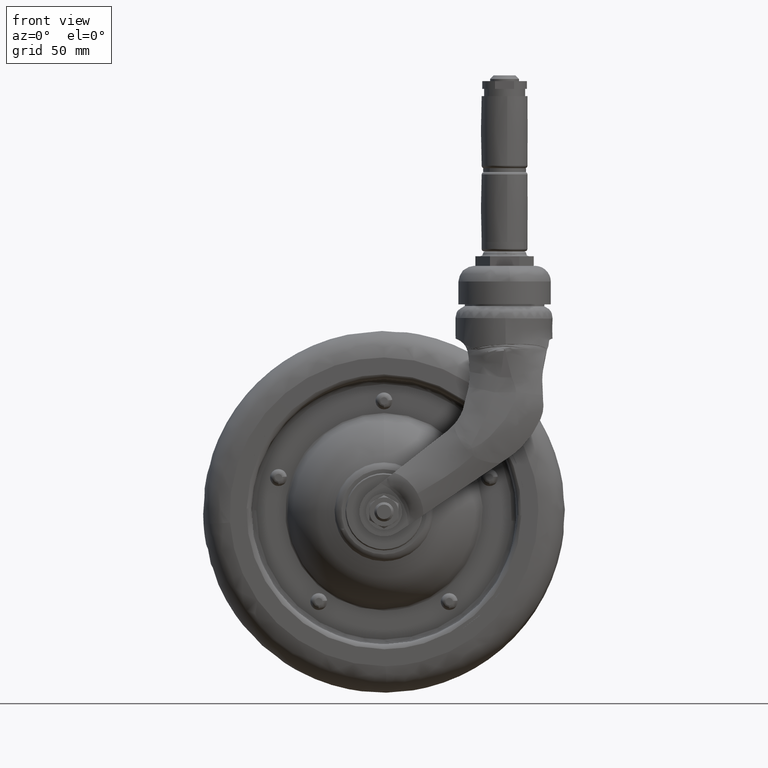
[diagram: clean part render]
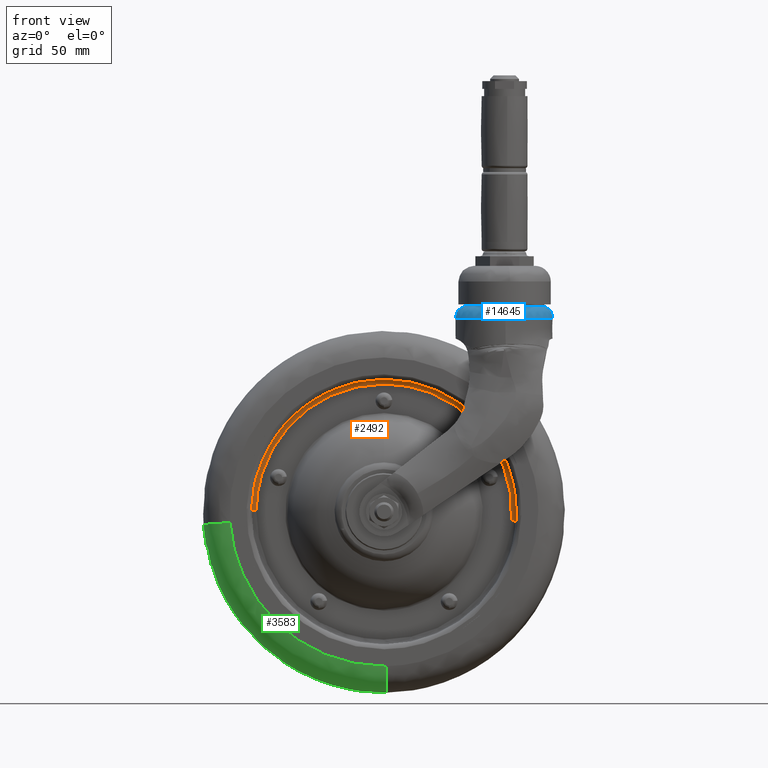
[diagram: same view with three faces highlighted in distinct colors, each labeled with its STEP entity id]
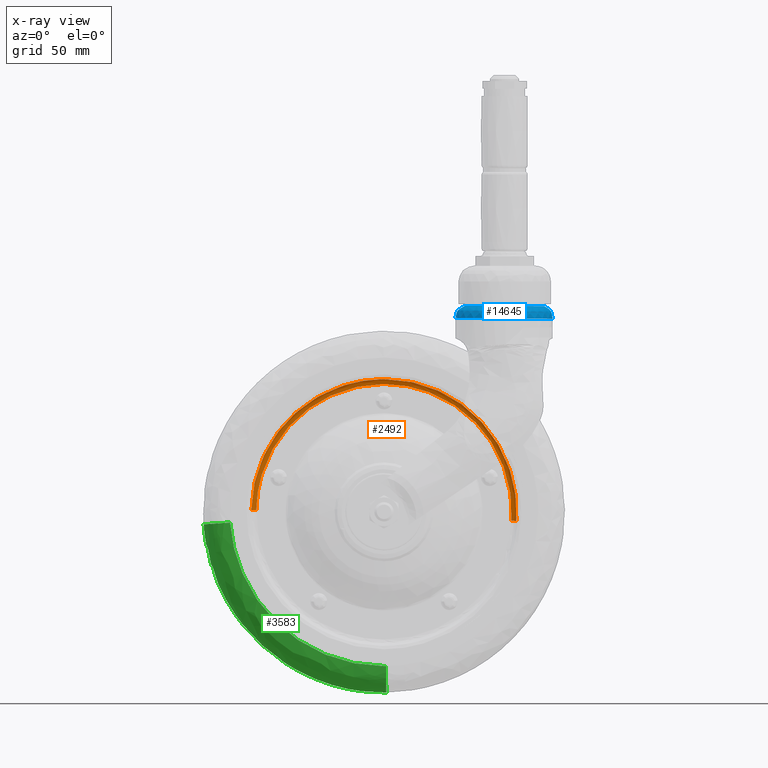
[diagram: x-ray of the same camera — body ghosted, the three highlighted faces saturated]
A machine part, front view with three faces highlighted in distinct colors.
The next image is the same camera in x-ray (body ghosted, the three faces saturated) — at least one of them is partly hidden behind the body in this view.
Their STEP definitions:

[orange] entity #2492 — the highlighted face is a freeform B-spline surface patch.
#294=CARTESIAN_POINT('',(-54.995657431208393,-3.499999996298913,0.691132193702749));
#295=VERTEX_POINT('',#294);
#314=CARTESIAN_POINT('',(0.0,-3.500000000000000,55.0));
#315=VERTEX_POINT('',#314);
#316=CARTESIAN_POINT('',(-54.995657431208393,-3.499999996298913,0.691132193702749));
#317=CARTESIAN_POINT('',(-54.963516294448162,-3.499999996473810,3.257551890051300));
#318=CARTESIAN_POINT('',(-54.538960993161389,-3.499999996823302,8.385819840712102));
#319=CARTESIAN_POINT('',(-52.736639468651667,-3.499999997366082,16.350659450743759));
#320=CARTESIAN_POINT('',(-49.908722195171848,-3.499999997856079,23.540376434203459));
#321=CARTESIAN_POINT('',(-45.781551494326841,-3.499999998353372,30.837558817659161));
#322=CARTESIAN_POINT('',(-41.037406598747481,-3.499999998769171,36.940272114492622));
#323=CARTESIAN_POINT('',(-35.514230824471767,-3.499999999125420,42.166366181418340));
#324=CARTESIAN_POINT('',(-30.580700695586941,-3.499999999375263,45.832812409790058));
#325=CARTESIAN_POINT('',(-24.912252382256298,-3.499999999604562,49.197354209538958));
#326=CARTESIAN_POINT('',(-18.858737283903949,-3.499999999784266,51.834516487691637));
#327=CARTESIAN_POINT('',(-10.266118359542901,-3.499999999952681,54.305387895006277));
#328=CARTESIAN_POINT('',(-4.128991686011442,-3.500000000000002,55.000935752018883));
#329=CARTESIAN_POINT('',(0.0,-3.500000000000000,55.0));
#330=B_SPLINE_CURVE_WITH_KNOTS('',3,(#316,#317,#318,#319,#320,#321,#322,#323,#324,#325,#326,#327,#328,#329),.UNSPECIFIED.,.F.,.U.,(4,1,1,1,1,1,1,1,1,1,1,4),(0.000000121073171,7.699859116797825,15.399715236336659,24.438699133597769,30.799476500067239,40.507961128890237,47.538235201957882,53.564187244087762,58.920636649217961,67.290076555041765,73.316092163037837,85.702779889918901),.UNSPECIFIED.);
#331=EDGE_CURVE('',#295,#315,#330,.T.);
#333=CARTESIAN_POINT('',(40.550253568691652,-3.499999999998821,37.157461370696602));
#334=VERTEX_POINT('',#333);
#335=CARTESIAN_POINT('',(0.0,-3.500000000000000,55.0));
#336=CARTESIAN_POINT('',(2.256091199589436,-3.500000000105044,55.000072344066062));
#337=CARTESIAN_POINT('',(6.530745537120064,-3.500000000276203,54.736529932600362));
#338=CARTESIAN_POINT('',(14.138488369842671,-3.500000000485495,53.367479086074333));
#339=CARTESIAN_POINT('',(22.044425984744940,-3.500000000569527,50.685166441815007));
#340=CARTESIAN_POINT('',(29.679733282214070,-3.500000000484757,46.526519890753377));
#341=CARTESIAN_POINT('',(35.687091480865028,-3.500000000289623,42.042310175656091));
#342=CARTESIAN_POINT('',(39.026113425769601,-3.500000000103972,38.820875109615173));
#343=CARTESIAN_POINT('',(40.550253568691652,-3.499999999998821,37.157461370696602));
#344=B_SPLINE_CURVE_WITH_KNOTS('',3,(#335,#336,#337,#338,#339,#340,#341,#342,#343),.UNSPECIFIED.,.F.,.U.,(4,1,1,1,1,1,4),(0.000000038581319,6.768274224086099,12.824108820092009,23.154587025656031,31.704018178830840,38.828532284390811,45.596806469894950),.UNSPECIFIED.);
#345=EDGE_CURVE('',#315,#334,#344,.T.);
#446=CARTESIAN_POINT('',(54.866112061222708,-3.499999996324733,-3.835328836664662));
#447=VERTEX_POINT('',#446);
#448=CARTESIAN_POINT('',(40.550253568691652,-3.499999999998821,37.157461370696602));
#449=CARTESIAN_POINT('',(42.749316142936458,-3.499999999847147,34.758057159549793));
#450=CARTESIAN_POINT('',(46.152197746478762,-3.499999999534466,30.308730076375021));
#451=CARTESIAN_POINT('',(49.675360144975528,-3.499999999016946,23.872119853918580));
#452=CARTESIAN_POINT('',(52.506302799158007,-3.499999998419315,16.983426849473471));
#453=CARTESIAN_POINT('',(54.820374828158023,-3.499999997569075,7.936313337234914));
#454=CARTESIAN_POINT('',(55.158759113358208,-3.499999996780375,0.339055042668067));
#455=CARTESIAN_POINT('',(54.866112061222708,-3.499999996324733,-3.835328836664662));
#456=B_SPLINE_CURVE_WITH_KNOTS('',3,(#448,#449,#450,#451,#452,#453,#454,#455),.UNSPECIFIED.,.F.,.U.,(4,1,1,1,1,4),(0.000000037472390,9.764032393164079,16.738373514700552,21.969121436903880,32.081827363914982,44.635589978975673),.UNSPECIFIED.);
#457=EDGE_CURVE('',#334,#447,#456,.T.);
#2398=CARTESIAN_POINT('',(52.732243878525139,-1.504841364902006,-3.686161229865897));
#2399=CARTESIAN_POINT('',(52.837740127440078,-1.504841364902005,-2.176988521689273));
#2400=CARTESIAN_POINT('',(52.856750729815388,-1.504841364902006,-0.664252484359025));
#2401=CARTESIAN_POINT('',(53.521003214174435,-1.504841364902005,52.192498245456356));
#2402=CARTESIAN_POINT('',(0.664252484359029,-1.504841364902006,52.856750729815388));
#2403=CARTESIAN_POINT('',(-52.192498245456356,-1.504841364902005,53.521003214174435));
#2404=CARTESIAN_POINT('',(-52.856750729815388,-1.504841364902006,0.664252484359032));
#2405=CARTESIAN_POINT('',(55.020809280183734,-1.344924112120445,-3.846139649806450));
#2406=CARTESIAN_POINT('',(55.130884038327800,-1.344924112120444,-2.271469246272565));
#2407=CARTESIAN_POINT('',(55.150719695805286,-1.344924112120444,-0.693080866044655));
#2408=CARTESIAN_POINT('',(55.843800561849960,-1.344924112120444,54.457638829760640));
#2409=CARTESIAN_POINT('',(0.693080866044658,-1.344924112120444,55.150719695805286));
#2410=CARTESIAN_POINT('',(-54.457638829760640,-1.344924112120444,55.843800561849960));
#2411=CARTESIAN_POINT('',(-55.150719695805286,-1.344924112120444,0.693080866044662));
#2412=CARTESIAN_POINT('',(54.861282782225409,-3.639074316905175,-3.834988210977773));
#2413=CARTESIAN_POINT('',(54.971038391289163,-3.639074316905177,-2.264883382872543));
#2414=CARTESIAN_POINT('',(54.990816537562935,-3.639074316905176,-0.691071357918393));
#2415=CARTESIAN_POINT('',(55.681887895481317,-3.639074316905177,54.299745179644546));
#2416=CARTESIAN_POINT('',(0.691071357918397,-3.639074316905176,54.990816537562935));
#2417=CARTESIAN_POINT('',(-54.299745179644546,-3.639074316905177,55.681887895481324));
#2418=CARTESIAN_POINT('',(-54.990816537562935,-3.639074316905176,0.691071357918400));
#2426=(BOUNDED_SURFACE()B_SPLINE_SURFACE(2,2,((#2398,#2405,#2412),(#2399,#2406,#2413),(#2400,#2407,#2414),(#2401,#2408,#2415),(#2402,#2409,#2416),(#2403,#2410,#2417),(#2404,#2411,#2418)),.UNSPECIFIED.,.F.,.F.,.U.)B_SPLINE_SURFACE_WITH_KNOTS((3,2,2,3),(3,3),(0.0,3.644755021429167,94.763717454972550,185.882679888516010),(0.0,3.644749607819361),.UNSPECIFIED.)GEOMETRIC_REPRESENTATION_ITEM()RATIONAL_B_SPLINE_SURFACE(((0.895730018595575,0.587800071602471,0.895729757417794),(0.905606779348395,0.594281444959602,0.905606515290739),(0.916342387972045,0.601326415415735,0.916342120784090),(0.647951916423707,0.425201986047065,0.647951727493292),(0.916342387972045,0.601326415415735,0.916342120784090),(0.647951916423707,0.425201986047065,0.647951727493292),(0.916342387972045,0.601326415415735,0.916342120784090)))REPRESENTATION_ITEM('')SURFACE());
#2427=CARTESIAN_POINT('',(52.870980726837857,-1.500000000000000,-3.695862334554006));
#2428=VERTEX_POINT('',#2427);
#2429=CARTESIAN_POINT('',(0.0,-1.500000000000000,53.0));
#2430=VERTEX_POINT('',#2429);
#2431=CARTESIAN_POINT('',(52.870980726837857,-1.500000000000000,-3.695862334554006));
#2432=CARTESIAN_POINT('',(53.156069870427800,-1.500000000000000,0.370080714765602));
#2433=CARTESIAN_POINT('',(52.895285186880827,-1.499999999999999,6.062586615055608));
#2434=CARTESIAN_POINT('',(51.297114683102961,-1.500000000000005,13.717476805158370));
#2435=CARTESIAN_POINT('',(49.558871093444907,-1.499999999999994,19.115894673033772));
#2436=CARTESIAN_POINT('',(46.601507437150516,-1.500000000000015,25.618300491152912));
#2437=CARTESIAN_POINT('',(42.812146995333833,-1.499999999999971,31.558242217135199));
#2438=CARTESIAN_POINT('',(37.402881293052637,-1.500000000000050,37.825311551199377));
#2439=CARTESIAN_POINT('',(31.117382031417460,-1.499999999999953,43.243088237918897));
#2440=CARTESIAN_POINT('',(23.981016001877109,-1.500000000000051,47.473226662346967));
#2441=CARTESIAN_POINT('',(16.431682323420208,-1.499999999999970,50.584540708583347));
#2442=CARTESIAN_POINT('',(8.717722832222359,-1.500000000000030,52.527391543196082));
#2443=CARTESIAN_POINT('',(2.830418404700128,-1.499999999999961,53.000172958172911));
#2444=CARTESIAN_POINT('',(0.0,-1.500000000000000,53.0));
#2445=B_SPLINE_CURVE_WITH_KNOTS('',3,(#2431,#2432,#2433,#2434,#2435,#2436,#2437,#2438,#2439,#2440,#2441,#2442,#2443,#2444),.UNSPECIFIED.,.F.,.U.,(4,1,1,1,1,1,1,1,1,1,1,4),(0.000000133021913,12.227497737482860,16.982651474228899,23.436080537715242,29.210214474300400,38.380820526694031,44.494503770400982,54.004803353054832,63.175492206214066,69.289262495019670,78.459953459212016,86.951218349480826),.UNSPECIFIED.);
#2446=EDGE_CURVE('',#2428,#2430,#2445,.T.);
#2447=ORIENTED_EDGE('',*,*,#2446,.F.);
#2448=CARTESIAN_POINT('',(52.870980726837857,-1.500000000000000,-3.695862334554006));
#2449=CARTESIAN_POINT('',(53.132150609984457,-1.499798879396999,-3.714119002387000));
#2450=CARTESIAN_POINT('',(53.687053043845772,-1.610601753072076,-3.752908579856257));
#2451=CARTESIAN_POINT('',(54.343421869899977,-2.073786166777297,-3.798791005079893));
#2452=CARTESIAN_POINT('',(54.768505382694549,-2.747537908575502,-3.828505796089613));
#2453=CARTESIAN_POINT('',(54.866402658221773,-3.238151743379208,-3.835349150386491));
#2454=CARTESIAN_POINT('',(54.866112061222708,-3.499999996324733,-3.835328836664662));
#2455=B_SPLINE_CURVE_WITH_KNOTS('',3,(#2448,#2449,#2450,#2451,#2452,#2453,#2454),.UNSPECIFIED.,.F.,.U.,(4,1,1,1,4),(0.000000560036233,0.785419310336253,1.668973678433490,2.356253810198891,3.141671482651687),.UNSPECIFIED.);
#2456=EDGE_CURVE('',#2428,#447,#2455,.T.);
#2457=ORIENTED_EDGE('',*,*,#2456,.T.);
#2458=ORIENTED_EDGE('',*,*,#457,.F.);
#2459=ORIENTED_EDGE('',*,*,#345,.F.);
#2460=ORIENTED_EDGE('',*,*,#331,.F.);
#2461=CARTESIAN_POINT('',(-52.995815386259423,-1.500000000000001,0.666000115189872));
#2462=VERTEX_POINT('',#2461);
#2463=CARTESIAN_POINT('',(-52.995815386259423,-1.500000000000001,0.666000115189872));
#2464=CARTESIAN_POINT('',(-53.339622723249931,-1.499120779299571,0.670320752896012));
#2465=CARTESIAN_POINT('',(-53.878557613133083,-1.642737803776280,0.677093564755464));
#2466=CARTESIAN_POINT('',(-54.439122223177343,-2.080506769975151,0.684138198011481));
#2467=CARTESIAN_POINT('',(-54.861714537173057,-2.649802480623451,0.689448929055700));
#2468=CARTESIAN_POINT('',(-54.996412651613262,-3.156191619059173,0.691141684561169));
#2469=CARTESIAN_POINT('',(-54.995657431208393,-3.499999996298913,0.691132193702749));
#2470=B_SPLINE_CURVE_WITH_KNOTS('',3,(#2463,#2464,#2465,#2466,#2467,#2468,#2469),.UNSPECIFIED.,.F.,.U.,(4,1,1,1,4),(0.000000560082316,1.030887640095152,1.619841097127080,2.110791238832748,3.141671471362371),.UNSPECIFIED.);
#2471=EDGE_CURVE('',#2462,#295,#2470,.T.);
#2472=ORIENTED_EDGE('',*,*,#2471,.F.);
#2473=CARTESIAN_POINT('',(0.0,-1.500000000000000,53.0));
#2474=CARTESIAN_POINT('',(-3.548644427817158,-1.499999999999998,53.000455561578889));
#2475=CARTESIAN_POINT('',(-9.462808186423269,-1.500000000000003,52.403708496899512));
#2476=CARTESIAN_POINT('',(-18.297189396238281,-1.500000000000002,49.979426991888133));
#2477=CARTESIAN_POINT('',(-25.180254810031769,-1.499999999999995,46.855556601789473));
#2478=CARTESIAN_POINT('',(-30.884286184182660,-1.500000000000006,43.181480076389562));
#2479=CARTESIAN_POINT('',(-35.262772155314003,-1.499999999999998,39.694145396780492));
#2480=CARTESIAN_POINT('',(-39.875224654342063,-1.500000000000002,35.167178035466343));
#2481=CARTESIAN_POINT('',(-43.897981472086030,-1.500000000000000,29.959958795479011));
#2482=CARTESIAN_POINT('',(-47.435321509200797,-1.499999999999996,23.921743549802741));
#2483=CARTESIAN_POINT('',(-50.365993720490472,-1.500000000000028,17.202767842660052));
#2484=CARTESIAN_POINT('',(-52.446477716979771,-1.499999999999933,9.154929386427435));
#2485=CARTESIAN_POINT('',(-52.962154049498757,-1.500000000000084,3.354123711376984));
#2486=CARTESIAN_POINT('',(-52.995815386259423,-1.500000000000001,0.666000115189872));
#2487=B_SPLINE_CURVE_WITH_KNOTS('',3,(#2473,#2474,#2475,#2476,#2477,#2478,#2479,#2480,#2481,#2482,#2483,#2484,#2485,#2486),.UNSPECIFIED.,.F.,.U.,(4,1,1,1,1,1,1,1,1,1,1,4),(0.000000129281176,10.645842471870781,17.743140246076319,27.421248276610200,33.228149713924033,38.067148349292061,44.196509302905199,52.584219016590318,57.745888139614991,65.165775054104301,74.521305273824851,82.586315186597659),.UNSPECIFIED.);
#2488=EDGE_CURVE('',#2430,#2462,#2487,.T.);
#2489=ORIENTED_EDGE('',*,*,#2488,.F.);
#2490=EDGE_LOOP('',(#2447,#2457,#2458,#2459,#2460,#2472,#2489));
#2491=FACE_OUTER_BOUND('',#2490,.T.);
#2492=ADVANCED_FACE('',(#2491),#2426,.F.);

[blue] entity #14645 — the highlighted face is a freeform B-spline surface patch.
#11246=CARTESIAN_POINT('',(38.625087509988958,-11.952467183041939,85.358876733427266));
#11247=VERTEX_POINT('',#11246);
#11253=CARTESIAN_POINT('',(55.888500301511073,-15.413486438801060,85.297955415481837));
#11254=VERTEX_POINT('',#11253);
#11255=CARTESIAN_POINT('',(38.625087509988958,-11.952467183041939,85.358876733427266));
#11256=CARTESIAN_POINT('',(39.395782870076822,-12.686061655601421,85.356354954113655));
#11257=CARTESIAN_POINT('',(41.232782398495388,-14.123270226430940,85.350237707083892));
#11258=CARTESIAN_POINT('',(44.121745866598182,-15.529204302237350,85.340325373629028));
#11259=CARTESIAN_POINT('',(46.841648772555402,-16.250709773896379,85.330787270078716));
#11260=CARTESIAN_POINT('',(49.487952526283593,-16.566515732317381,85.321375256048071));
#11261=CARTESIAN_POINT('',(52.498999139534703,-16.434070355542492,85.310497869157871));
#11262=CARTESIAN_POINT('',(54.759065911372083,-15.845164759458950,85.302166068680904));
#11263=CARTESIAN_POINT('',(55.888500301511073,-15.413486438801060,85.297955415481837));
#11264=B_SPLINE_CURVE_WITH_KNOTS('',3,(#11255,#11256,#11257,#11258,#11259,#11260,#11261,#11262,#11263),.UNSPECIFIED.,.F.,.U.,(4,1,1,1,1,1,4),(0.000000111792943,3.192071292582757,6.964547172296344,9.576193231135980,11.607538222984740,14.944718055348959,18.572070816485098),.UNSPECIFIED.);
#11265=EDGE_CURVE('',#11247,#11254,#11264,.T.);
#11267=CARTESIAN_POINT('',(65.412927132700091,5.889780819351711,85.251697387351143));
#11268=VERTEX_POINT('',#11267);
#11269=CARTESIAN_POINT('',(55.888500301511073,-15.413486438801060,85.297955415481837));
#11270=CARTESIAN_POINT('',(57.528456298920027,-14.788143926210010,85.290690383341030));
#11271=CARTESIAN_POINT('',(59.598473715644772,-13.588744441543740,85.281425851227027));
#11272=CARTESIAN_POINT('',(62.046267339435730,-11.356864917513590,85.270283414463520));
#11273=CARTESIAN_POINT('',(63.470076830206303,-9.633226569204375,85.263704334996447));
#11274=CARTESIAN_POINT('',(64.798225359542286,-7.433272389621943,85.257431086182777));
#11275=CARTESIAN_POINT('',(65.843366860706837,-4.933012506832665,85.252317667085194));
#11276=CARTESIAN_POINT('',(66.456351547440690,-2.081713735398397,85.249000062844686));
#11277=CARTESIAN_POINT('',(66.582709692652273,1.640522114860773,85.247595214547417));
#11278=CARTESIAN_POINT('',(66.040303242579043,4.250634595936312,85.249350151326382));
#11279=CARTESIAN_POINT('',(65.412927132700091,5.889780819351711,85.251697387351143));
#11280=B_SPLINE_CURVE_WITH_KNOTS('',3,(#11269,#11270,#11271,#11272,#11273,#11274,#11275,#11276,#11277,#11278,#11279),.UNSPECIFIED.,.F.,.U.,(4,1,1,1,1,1,1,1,4),(0.000000205670936,5.264935005386366,7.087419994399717,9.922389909095173,11.947366929402010,14.782288613523860,18.022263152605181,20.654771756828019,25.919691071852590),.UNSPECIFIED.);
#11281=EDGE_CURVE('',#11254,#11268,#11280,.T.);
#11283=CARTESIAN_POINT('',(60.672701045888317,12.583456161591659,85.270741635043237));
#11284=VERTEX_POINT('',#11283);
#11285=CARTESIAN_POINT('',(65.412927132700091,5.889780819351711,85.251697387351143));
#11286=CARTESIAN_POINT('',(64.950854845990023,7.099738598680143,85.253425599719421));
#11287=CARTESIAN_POINT('',(63.658879963406520,9.563738795946309,85.258469124882225));
#11288=CARTESIAN_POINT('',(61.792490042402001,11.634360201070640,85.266097412456546));
#11289=CARTESIAN_POINT('',(60.672701045888317,12.583456161591659,85.270741635043237));
#11290=B_SPLINE_CURVE_WITH_KNOTS('',3,(#11285,#11286,#11287,#11288,#11289),.UNSPECIFIED.,.F.,.U.,(4,1,4),(0.000000010181642,3.885530811264614,8.289131873353419),.UNSPECIFIED.);
#11291=EDGE_CURVE('',#11268,#11284,#11290,.T.);
#11331=CARTESIAN_POINT('',(44.108906367360397,15.412495414731540,85.342015641299696));
#11332=VERTEX_POINT('',#11331);
#11333=CARTESIAN_POINT('',(60.672701045888317,12.583456161591659,85.270741635043237));
#11334=CARTESIAN_POINT('',(59.622454536711331,13.474654824814341,85.275097122921665));
#11335=CARTESIAN_POINT('',(57.297092287440009,14.991676666955501,85.284845582632215));
#11336=CARTESIAN_POINT('',(53.836183757398103,16.168699631953359,85.299603108533049));
#11337=CARTESIAN_POINT('',(50.727919923186022,16.553311387363170,85.313011610104709));
#11338=CARTESIAN_POINT('',(47.597981770357357,16.442708459911550,85.326628129932502));
#11339=CARTESIAN_POINT('',(45.395406138583937,15.904659419164540,85.336316093326005));
#11340=CARTESIAN_POINT('',(44.108906367360397,15.412495414731540,85.342015641299696));
#11341=B_SPLINE_CURVE_WITH_KNOTS('',3,(#11333,#11334,#11335,#11336,#11337,#11338,#11339,#11340),.UNSPECIFIED.,.F.,.U.,(4,1,1,1,1,4),(0.000000097770780,4.132193800855960,8.264421736964222,10.881447564676270,13.498507280999890,17.630701782836262),.UNSPECIFIED.);
#11342=EDGE_CURVE('',#11284,#11332,#11341,.T.);
#11344=CARTESIAN_POINT('',(33.861051505520919,3.432846211673879,85.370756390378418));
#11345=VERTEX_POINT('',#11344);
#11356=CARTESIAN_POINT('',(33.861051505520919,3.432846211673879,85.370756390378418));
#11357=CARTESIAN_POINT('',(33.678702834283243,2.575699113637198,85.371705367605969));
#11358=CARTESIAN_POINT('',(33.416728633777467,0.570750108111818,85.373333126603001));
#11359=CARTESIAN_POINT('',(33.590249696950643,-2.684491132389530,85.373821563642110));
#11360=CARTESIAN_POINT('',(34.455676257458173,-5.830272964627556,85.371783471150465));
#11361=CARTESIAN_POINT('',(36.054645618681079,-9.060623307122082,85.367135380586220));
#11362=CARTESIAN_POINT('',(37.545484703470223,-10.925794437299221,85.362409653905047));
#11363=CARTESIAN_POINT('',(38.625087509988958,-11.952467183041939,85.358876733427266));
#11364=B_SPLINE_CURVE_WITH_KNOTS('',3,(#11356,#11357,#11358,#11359,#11360,#11361,#11362,#11363),.UNSPECIFIED.,.F.,.U.,(4,1,1,1,1,4),(0.000000028357459,2.629027334464160,6.046772677679956,9.727405636029470,12.356441217500929,16.825792409328781),.UNSPECIFIED.);
#11365=EDGE_CURVE('',#11345,#11247,#11364,.T.);
#14116=CARTESIAN_POINT('',(30.077753792951171,4.245009742154640,80.398298992011348));
#14117=VERTEX_POINT('',#14116);
#14118=CARTESIAN_POINT('',(42.813333343652261,18.931065039744009,80.311687585657367));
#14119=VERTEX_POINT('',#14118);
#14131=CARTESIAN_POINT('',(33.861051505520919,3.432846211673879,85.370756390378418));
#14132=CARTESIAN_POINT('',(33.455274342040710,3.519949056683072,85.274588175219947));
#14133=CARTESIAN_POINT('',(32.602260786429760,3.703055832510699,84.950531403812860));
#14134=CARTESIAN_POINT('',(31.611600313151190,3.915714462235004,84.207701316997586));
#14135=CARTESIAN_POINT('',(30.764691807032978,4.097520070762256,83.165198467872088));
#14136=CARTESIAN_POINT('',(30.198572293313131,4.219055787617143,81.927712185623520));
#14137=CARTESIAN_POINT('',(30.067674629114439,4.247166837051646,80.895221726313878));
#14138=CARTESIAN_POINT('',(30.077753792951171,4.245009742154640,80.398298992011348));
#14139=B_SPLINE_CURVE_WITH_KNOTS('',3,(#14131,#14132,#14133,#14134,#14135,#14136,#14137,#14138),.UNSPECIFIED.,.F.,.U.,(4,1,1,1,1,4),(0.000000308173516,1.278095328690815,2.769260039940150,3.727722353656005,5.325407731484782,6.816507550207864),.UNSPECIFIED.);
#14140=EDGE_CURVE('',#11345,#14117,#14139,.T.);
#14143=CARTESIAN_POINT('',(44.108906367360397,15.412495414731540,85.342015641299696));
#14144=CARTESIAN_POINT('',(43.943345342876682,15.861958361406280,85.218896806103430));
#14145=CARTESIAN_POINT('',(43.647854743596533,16.664200279505788,84.856616196189393));
#14146=CARTESIAN_POINT('',(43.283008745805503,17.654872522156200,84.010087043817563));
#14147=CARTESIAN_POINT('',(43.040378381417582,18.313817939056019,83.067850071300768));
#14148=CARTESIAN_POINT('',(42.851286815294891,18.827527606767550,81.835526552155073));
#14149=CARTESIAN_POINT('',(42.805262287308921,18.952772854487421,80.911834252936941));
#14150=CARTESIAN_POINT('',(42.813333343652261,18.931065039744009,80.311687585657367));
#14151=B_SPLINE_CURVE_WITH_KNOTS('',3,(#14143,#14144,#14145,#14146,#14147,#14148,#14149,#14150),.UNSPECIFIED.,.F.,.U.,(4,1,1,1,1,4),(0.000000300659146,1.483600432885486,2.755328914488664,4.026889126139600,4.980688356915438,6.782218296156573),.UNSPECIFIED.);
#14152=EDGE_CURVE('',#11332,#14119,#14151,.T.);
#14157=CARTESIAN_POINT('',(43.859064051026614,14.859314354781526,85.433264967038269));
#14158=CARTESIAN_POINT('',(43.992167969691550,14.908436797078801,85.433248425692213));
#14159=CARTESIAN_POINT('',(44.125276653684331,14.957560998036126,85.433231883753947));
#14160=CARTESIAN_POINT('',(45.248966902600827,15.372262608372443,85.433092238359094));
#14161=CARTESIAN_POINT('',(46.258384163440624,15.634396438274244,85.432967500900347));
#14162=CARTESIAN_POINT('',(47.800880876470103,15.880236522844388,85.432773165089060));
#14163=CARTESIAN_POINT('',(48.319842849085667,15.937361724585228,85.432707168739029));
#14164=CARTESIAN_POINT('',(49.368097304799832,15.999996584502600,85.432571954505050));
#14165=CARTESIAN_POINT('',(49.898815899420690,16.004942291278081,85.432502623454127));
#14166=CARTESIAN_POINT('',(51.469479951979572,15.941515808964823,85.432299869519838));
#14167=CARTESIAN_POINT('',(52.500293550022782,15.797703092792723,85.432167857177092));
#14168=CARTESIAN_POINT('',(54.024462596044977,15.431921296640207,85.431969639849697));
#14169=CARTESIAN_POINT('',(54.530767033090569,15.284019191573980,85.431903281987331));
#14170=CARTESIAN_POINT('',(55.526754420553580,14.937876915310824,85.431771170383456));
#14171=CARTESIAN_POINT('',(56.012424846101297,14.741047809423529,85.431706086161526));
#14172=CARTESIAN_POINT('',(57.432050164515417,14.083064649360175,85.431518413210981));
#14173=CARTESIAN_POINT('',(58.330206345742894,13.555373153393356,85.431401052440037));
#14174=CARTESIAN_POINT('',(59.393074221326401,12.781823018205580,85.431260520961160));
#14175=CARTESIAN_POINT('',(59.603106318227383,12.620915332771117,85.431232665763588));
#14176=CARTESIAN_POINT('',(60.012875348911443,12.290558050437445,85.431178103290264));
#14177=CARTESIAN_POINT('',(60.212972059272929,12.120887748925838,85.431151348989815));
#14178=CARTESIAN_POINT('',(60.799059921562964,11.598478904808731,85.431072599741810));
#14179=CARTESIAN_POINT('',(61.170730249714474,11.232268213056312,85.431022265274677));
#14180=CARTESIAN_POINT('',(61.875955579192421,10.465880137758873,85.430928178122514));
#14181=CARTESIAN_POINT('',(62.209740764224406,10.065611334204229,85.430883984997948));
#14182=CARTESIAN_POINT('',(62.682260701244758,9.439334079184272,85.430821467694415));
#14183=CARTESIAN_POINT('',(62.835060958450406,9.226253064288317,85.430801260178171));
#14184=CARTESIAN_POINT('',(63.131110253133457,8.791257470930772,85.430762067527965));
#14185=CARTESIAN_POINT('',(63.274500326222963,8.569042888877304,85.430743063505503));
#14186=CARTESIAN_POINT('',(63.685617765520263,7.896248746702848,85.430688446421470));
#14187=CARTESIAN_POINT('',(63.935969899276088,7.437307756657137,85.430655000134337));
#14188=CARTESIAN_POINT('',(64.389871290323484,6.498543315815733,85.430593866614743));
#14189=CARTESIAN_POINT('',(64.593218517722974,6.018668464590586,85.430566310953083));
#14190=CARTESIAN_POINT('',(64.952614112961555,5.039430009327560,85.430518376688440));
#14191=CARTESIAN_POINT('',(65.108841968942940,4.539900659059095,85.430497730847009));
#14192=CARTESIAN_POINT('',(65.373549119351196,3.520317119778806,85.430462752510252));
#14193=CARTESIAN_POINT('',(65.480762093080017,3.004317251112280,85.430448585880157));
#14194=CARTESIAN_POINT('',(65.643505062228471,1.972268440892543,85.430426960467145));
#14195=CARTESIAN_POINT('',(65.699544893509341,1.454299473130168,85.430419435080964));
#14196=CARTESIAN_POINT('',(65.760691273295521,0.414135403905018,85.430411202998343));
#14197=CARTESIAN_POINT('',(65.765592798963141,-0.108052466263185,85.430410598788001));
#14198=CARTESIAN_POINT('',(65.723671473761769,-1.155229908457615,85.430416346318552));
#14199=CARTESIAN_POINT('',(65.676428024698666,-1.683151334964809,85.430422706017723));
#14200=CARTESIAN_POINT('',(65.531888397049784,-2.722717472976261,85.430441930862742));
#14201=CARTESIAN_POINT('',(65.434822561435439,-3.235711926107294,85.430454766827552));
#14202=CARTESIAN_POINT('',(65.192024237027425,-4.248719582995544,85.430486966107381));
#14203=CARTESIAN_POINT('',(65.046289548990899,-4.748734775740419,85.430506329029384));
#14204=CARTESIAN_POINT('',(64.704964858949467,-5.735795806407458,85.430552251148825));
#14205=CARTESIAN_POINT('',(64.509179668007249,-6.222774499984547,85.430578896368047));
#14206=CARTESIAN_POINT('',(63.845434824785947,-7.661530748353377,85.430667868674391));
#14207=CARTESIAN_POINT('',(63.316115654015746,-8.561964217526462,85.430737705159416));
#14208=CARTESIAN_POINT('',(62.399055890742581,-9.827063571754682,85.430859315205012));
#14209=CARTESIAN_POINT('',(62.072525509480613,-10.234557410407183,85.430902734278618));
#14210=CARTESIAN_POINT('',(61.375948335185086,-11.020249216818636,85.430996332419355));
#14211=CARTESIAN_POINT('',(61.004126494746416,-11.399456971221632,85.431046785825870));
#14212=CARTESIAN_POINT('',(59.848222435365862,-12.466860419525563,85.431201146908450));
#14213=CARTESIAN_POINT('',(59.017831124629815,-13.094763808183446,85.431310145801959));
#14214=CARTESIAN_POINT('',(57.682699805721057,-13.914665208377103,85.431486016082587));
#14215=CARTESIAN_POINT('',(57.221328013006165,-14.168022703028729,85.431546906759181));
#14216=CARTESIAN_POINT('',(56.271714147125472,-14.628943627390836,85.431673333440301));
#14217=CARTESIAN_POINT('',(55.788973782058264,-14.833754079271063,85.431738116635401));
#14218=CARTESIAN_POINT('',(54.319922805024483,-15.373812184876822,85.431931778010565));
#14219=CARTESIAN_POINT('',(53.312427999587271,-15.636411855888738,85.432061869410120));
#14220=CARTESIAN_POINT('',(51.756493077982675,-15.882868961303668,85.432262822979112));
#14221=CARTESIAN_POINT('',(51.229988162831432,-15.939978937449293,85.432330844726579));
#14222=CARTESIAN_POINT('',(50.439352501559355,-15.985686132297497,85.432433697183143));
#14223=CARTESIAN_POINT('',(50.175002330804752,-15.994290984106120,85.432468334463309));
#14224=CARTESIAN_POINT('',(49.649154052684302,-15.998214578929472,85.432536668646037));
#14225=CARTESIAN_POINT('',(49.387176956564616,-15.993596986097280,85.432570470150097));
#14226=CARTESIAN_POINT('',(48.081762721664234,-15.938512179030123,85.432737864159066));
#14227=CARTESIAN_POINT('',(47.051726175303486,-15.793420782031964,85.432866671018147));
#14228=CARTESIAN_POINT('',(45.525974060050551,-15.424584144859775,85.433057031659843));
#14229=CARTESIAN_POINT('',(45.017886890729628,-15.275077190201447,85.433120353686249));
#14230=CARTESIAN_POINT('',(44.026596628937369,-14.928651650955940,85.433244596967612));
#14231=CARTESIAN_POINT('',(43.542696839024451,-14.731707297065959,85.433305493287676));
#14232=CARTESIAN_POINT('',(42.126745913484292,-14.073055000838009,85.433479981685934));
#14233=CARTESIAN_POINT('',(41.229040196059451,-13.544508915717476,85.433587517836870));
#14234=CARTESIAN_POINT('',(39.526369834774677,-12.301852350540106,85.433790932312945));
#14235=CARTESIAN_POINT('',(38.747199127882233,-11.604899463927742,85.433885272063335));
#14236=CARTESIAN_POINT('',(37.691501576227878,-10.455874672877654,85.434009996740116));
#14237=CARTESIAN_POINT('',(37.358014812203990,-10.055442773983009,85.434048860036938));
#14238=CARTESIAN_POINT('',(36.727994646984151,-9.219147185199692,85.434121773602314));
#14239=CARTESIAN_POINT('',(36.430603131874889,-8.781443953866431,85.434155923527626));
#14240=CARTESIAN_POINT('',(35.885460390570195,-7.888067772255368,85.434218515294447));
#14241=CARTESIAN_POINT('',(35.636121259714855,-7.430596904373824,85.434247142836256));
#14242=CARTESIAN_POINT('',(35.183562928743584,-6.493881647927341,85.434299526616655));
#14243=CARTESIAN_POINT('',(34.980544633463936,-6.014586306388464,85.434323215957690));
#14244=CARTESIAN_POINT('',(34.621387729168461,-5.035428816207749,85.434364386529140));
#14245=CARTESIAN_POINT('',(34.464750361213042,-4.534124781283131,85.434382133614790));
#14246=CARTESIAN_POINT('',(34.200538048686518,-3.515273024215084,85.434411931375010));
#14247=CARTESIAN_POINT('',(34.094309928149187,-3.003461721277868,85.434423833241965));
#14248=CARTESIAN_POINT('',(33.932007748230049,-1.974865832272115,85.434442033574797));
#14249=CARTESIAN_POINT('',(33.875938829923236,-1.458082323411057,85.434448331130724));
#14250=CARTESIAN_POINT('',(33.814557987910135,-0.419150847565046,85.434455309296055));
#14251=CARTESIAN_POINT('',(33.809449478074434,0.102995793762174,85.434455952029253));
#14252=CARTESIAN_POINT('',(33.851134972297565,1.151342067859378,85.434451395118401));
#14253=CARTESIAN_POINT('',(33.898225098406243,1.678040281527294,85.434446184375233));
#14254=CARTESIAN_POINT('',(34.024494788057360,2.589006177628852,85.434432119184450));
#14255=CARTESIAN_POINT('',(34.093272089009673,2.978826075275918,85.434424437917571));
#14256=CARTESIAN_POINT('',(34.205488834313236,3.501861155817056,85.434411824523551));
#14257=CARTESIAN_POINT('',(34.234809226179273,3.638521629079423,85.434408528850938));
#14258=CARTESIAN_POINT('',(34.264129825717717,3.775183070289703,85.434405233154962));
#14259=CARTESIAN_POINT('',(42.248253719386582,18.896496533812794,84.716148849893713));
#14260=CARTESIAN_POINT('',(42.417294712121169,18.959855949461666,84.715886164370616));
#14261=CARTESIAN_POINT('',(42.586371253208107,19.023228689232685,84.715623423606289));
#14262=CARTESIAN_POINT('',(44.014875205288149,19.558656068069798,84.713403563785320));
#14263=CARTESIAN_POINT('',(45.294722143425517,19.898144073904888,84.711417272009058));
#14264=CARTESIAN_POINT('',(47.256031132442274,20.221659972143883,84.708316355745637));
#14265=CARTESIAN_POINT('',(47.916846020426547,20.298152589280875,84.707261648544304));
#14266=CARTESIAN_POINT('',(49.255315495364421,20.385660490777497,84.705098028098590));
#14267=CARTESIAN_POINT('',(49.934704764189128,20.395853267108912,84.703987216377200));
#14268=CARTESIAN_POINT('',(51.939685223868040,20.326196751813246,84.700733397715510));
#14269=CARTESIAN_POINT('',(53.252415659481379,20.150485106908061,84.698610258643512));
#14270=CARTESIAN_POINT('',(55.198941502852065,19.694753113214698,84.695415552225782));
#14271=CARTESIAN_POINT('',(55.846506210882907,19.509524830675502,84.694344334448530));
#14272=CARTESIAN_POINT('',(57.123855280497573,19.073440045478900,84.692208980577902));
#14273=CARTESIAN_POINT('',(57.748265621881714,18.824324919091243,84.691155690382828));
#14274=CARTESIAN_POINT('',(59.568060539209348,17.992488536041051,84.688113826543514));
#14275=CARTESIAN_POINT('',(60.716454492103900,17.325408021203877,84.686207765844486));
#14276=CARTESIAN_POINT('',(62.079063554165899,16.343512788330798,84.683921516506388));
#14277=CARTESIAN_POINT('',(62.348520539916159,16.139067173328137,84.683467901990198));
#14278=CARTESIAN_POINT('',(62.874747601009396,15.718777271463628,84.682578901422872));
#14279=CARTESIAN_POINT('',(63.131977695648885,15.502653639740263,84.682142759892244));
#14280=CARTESIAN_POINT('',(63.886382935686072,14.836173555158524,84.680858181568780));
#14281=CARTESIAN_POINT('',(64.365891975745257,14.367697830596939,84.680036406631856));
#14282=CARTESIAN_POINT('',(65.272895716844076,13.389893854977931,84.678498910497652));
#14283=CARTESIAN_POINT('',(65.701557221764105,12.879715142378688,84.677776095839690));
#14284=CARTESIAN_POINT('',(66.308329918100469,12.081383041399965,84.676752865319088));
#14285=CARTESIAN_POINT('',(66.504532743246116,11.809743715028418,84.676421956314883));
#14286=CARTESIAN_POINT('',(66.884774973108804,11.254991459168908,84.675779912625131));
#14287=CARTESIAN_POINT('',(67.068996081726965,10.971494524945202,84.675468476676926));
#14288=CARTESIAN_POINT('',(67.597493472521066,10.112552171285762,84.674573013053532));
#14289=CARTESIAN_POINT('',(67.919766930259257,9.525849259925751,84.674024324878474));
#14290=CARTESIAN_POINT('',(68.505399679070791,8.322611581533336,84.673020828130589));
#14291=CARTESIAN_POINT('',(68.768325714403758,7.706132118730475,84.672568242615355));
#14292=CARTESIAN_POINT('',(69.231484228698221,6.452081805079844,84.671780578293010));
#14293=CARTESIAN_POINT('',(69.432463643966955,5.813287530162667,84.671441167980831));
#14294=CARTESIAN_POINT('',(69.772939486508079,4.509783207764224,84.670865938048109));
#14295=CARTESIAN_POINT('',(69.910810180841239,3.850245609436479,84.670632886406679));
#14296=CARTESIAN_POINT('',(70.120287953448113,2.529727220883631,84.670277054790191));
#14297=CARTESIAN_POINT('',(70.192549134998345,1.866292370408283,84.670153204793024));
#14298=CARTESIAN_POINT('',(70.271513445001830,0.531010722262526,84.670017712185469));
#14299=CARTESIAN_POINT('',(70.277842440566332,-0.140707606597549,84.670007766757081));
#14300=CARTESIAN_POINT('',(70.223776647669823,-1.483069046415041,84.670102368092628));
#14301=CARTESIAN_POINT('',(70.162923740488054,-2.158595248728341,84.670207038669687));
#14302=CARTESIAN_POINT('',(69.976964630354743,-3.488113053982074,84.670523392706542));
#14303=CARTESIAN_POINT('',(69.852153056001811,-4.143847055886487,84.670734573786348));
#14304=CARTESIAN_POINT('',(69.539683258844761,-5.439677960525614,84.671264165248090));
#14305=CARTESIAN_POINT('',(69.352022658233679,-6.079776567775169,84.671582531831376));
#14306=CARTESIAN_POINT('',(68.911476162884313,-7.345784793634501,84.672337258989799));
#14307=CARTESIAN_POINT('',(68.658266516891331,-7.971499199641338,84.672774972815233));
#14308=CARTESIAN_POINT('',(67.803105287180472,-9.813110342916971,84.674235500976991));
#14309=CARTESIAN_POINT('',(67.123701010740135,-10.960724044788671,84.675380750989106));
#14310=CARTESIAN_POINT('',(65.945347923378321,-12.574535568544547,84.677372426030075));
#14311=CARTESIAN_POINT('',(65.525554939884699,-13.094554822374457,84.678082809603708));
#14312=CARTESIAN_POINT('',(64.628245471621895,-14.098674979586136,84.679612817069867));
#14313=CARTESIAN_POINT('',(64.148433035008466,-14.583920328711740,84.680436804840539));
#14314=CARTESIAN_POINT('',(62.662641506438895,-15.944080003985150,84.682954587056770));
#14315=CARTESIAN_POINT('',(61.599688734784230,-16.739897638409072,84.684729446325406));
#14316=CARTESIAN_POINT('',(59.889179123651779,-17.778693733064127,84.687587770997141));
#14317=CARTESIAN_POINT('',(59.297840532320130,-18.099560260295849,84.688575972313657));
#14318=CARTESIAN_POINT('',(58.078554328405183,-18.683476781327016,84.690625313728177));
#14319=CARTESIAN_POINT('',(57.457781493802187,-18.942878562949883,84.691674164131285));
#14320=CARTESIAN_POINT('',(55.576207272414500,-19.623015416543183,84.694804644023222));
#14321=CARTESIAN_POINT('',(54.291495277426328,-19.950138163131822,84.696903137172015));
#14322=CARTESIAN_POINT('',(52.306020974120557,-20.253264766461157,84.700137734422484));
#14323=CARTESIAN_POINT('',(51.633926902863024,-20.322387980694259,84.701230854607459));
#14324=CARTESIAN_POINT('',(50.622979886077147,-20.375089029496127,84.702881885376854));
#14325=CARTESIAN_POINT('',(50.284417120511023,-20.384178708144294,84.703437437124833));
#14326=CARTESIAN_POINT('',(49.612105402218063,-20.385390237099124,84.704532753140811));
#14327=CARTESIAN_POINT('',(49.277645850919562,-20.377603467168377,84.705074205088792));
#14328=CARTESIAN_POINT('',(47.612971252514342,-20.298036400522488,84.707752508024797));
#14329=CARTESIAN_POINT('',(46.305363095092446,-20.106416798648780,84.709809401380880));
#14330=CARTESIAN_POINT('',(44.366915593922108,-19.626958824031668,84.712843083422726));
#14331=CARTESIAN_POINT('',(43.721150200631818,-19.433324955615621,84.713850685041706));
#14332=CARTESIAN_POINT('',(42.459195429694155,-18.985031333968330,84.715825398782087));
#14333=CARTESIAN_POINT('',(41.842426165442923,-18.730353213514313,84.716792166915724));
#14334=CARTESIAN_POINT('',(40.044559275124840,-17.883419042231701,84.719558428144310));
#14335=CARTESIAN_POINT('',(38.909736425819823,-17.208164727007787,84.721260165141075));
#14336=CARTESIAN_POINT('',(36.755169290760882,-15.621835463607514,84.724473101210009));
#14337=CARTESIAN_POINT('',(35.765071077136604,-14.729173941697796,84.725960433699399));
#14338=CARTESIAN_POINT('',(34.429313092140781,-13.265209601991620,84.727924164417246));
#14339=CARTESIAN_POINT('',(34.008241283537622,-12.756212398032298,84.728535454261788));
#14340=CARTESIAN_POINT('',(33.213267171070285,-11.694307670633966,84.729681557040877));
#14341=CARTESIAN_POINT('',(32.838276723800767,-11.139063267114150,84.730217992606157));
#14342=CARTESIAN_POINT('',(32.150466060342282,-10.005298786729572,84.731200629141298));
#14343=CARTESIAN_POINT('',(31.835639714028339,-9.424489540700114,84.731649803176211));
#14344=CARTESIAN_POINT('',(31.263228551335882,-8.233109482025107,84.732471321474890));
#14345=CARTESIAN_POINT('',(31.006055579220543,-7.622600801970038,84.732842658501539));
#14346=CARTESIAN_POINT('',(30.552629862965830,-6.379900761977529,84.733487770527162));
#14347=CARTESIAN_POINT('',(30.355275983071923,-5.744905373008674,84.733765751817785));
#14348=CARTESIAN_POINT('',(30.022502117524628,-4.455174595108996,84.734232358550784));
#14349=CARTESIAN_POINT('',(29.888772652495398,-3.807682281739024,84.734418682275447));
#14350=CARTESIAN_POINT('',(29.684294868172941,-2.505412415436545,84.734703559283744));
#14351=CARTESIAN_POINT('',(29.613553122366049,-1.850633648504768,84.734802114906941));
#14352=CARTESIAN_POINT('',(29.536003069323655,-0.531557067931540,84.734911314175577));
#14353=CARTESIAN_POINT('',(29.529549945094288,0.132655238442149,84.734921371581549));
#14354=CARTESIAN_POINT('',(29.582153232800472,1.461840701999354,84.734850063387000));
#14355=CARTESIAN_POINT('',(29.641506365284418,2.128526245866666,84.734768519807275));
#14356=CARTESIAN_POINT('',(29.800509615110318,3.281247801420945,84.734548383465182));
#14357=CARTESIAN_POINT('',(29.887086198704871,3.774412479484433,84.734428147978420));
#14358=CARTESIAN_POINT('',(30.028423248911984,4.436450268478604,84.734230682799790));
#14359=CARTESIAN_POINT('',(30.065355352184586,4.609444171759261,84.734179084125842));
#14360=CARTESIAN_POINT('',(30.102288982567501,4.782445228187140,84.734127483318346));
#14361=CARTESIAN_POINT('',(42.308991710497416,18.744873745161115,80.300026478102666));
#14362=CARTESIAN_POINT('',(42.477171399148069,18.806754397380953,80.298832577916016));
#14363=CARTESIAN_POINT('',(42.645350965366106,18.868635004552505,80.297638678598588));
#14364=CARTESIAN_POINT('',(44.064861307420543,19.390934852434988,80.287561637334903));
#14365=CARTESIAN_POINT('',(45.335670110537144,19.719428945289085,80.278563898223339));
#14366=CARTESIAN_POINT('',(47.280566460127375,20.027247561972530,80.264552292194665));
#14367=CARTESIAN_POINT('',(47.935429201799238,20.098644007516533,80.259795581459571));
#14368=CARTESIAN_POINT('',(49.260843720866731,20.176327936116841,80.250052705660721));
#14369=CARTESIAN_POINT('',(49.933099513008635,20.181797810444216,80.245058470303505));
#14370=CARTESIAN_POINT('',(51.915944758555611,20.099425386200391,80.230458420849160));
#14371=CARTESIAN_POINT('',(53.212614016921663,19.916846190773516,80.220957017326853));
#14372=CARTESIAN_POINT('',(55.132663642193727,19.453666925458908,80.206697433918890));
#14373=CARTESIAN_POINT('',(55.770963404222123,19.266434582015656,80.201925383614963));
#14374=CARTESIAN_POINT('',(57.029044208230850,18.827535741529964,80.192427371002282));
#14375=CARTESIAN_POINT('',(57.643541142844867,18.577635040575966,80.187749519251739));
#14376=CARTESIAN_POINT('',(59.433677345063089,17.745419532861757,80.174265264306257));
#14377=CARTESIAN_POINT('',(60.562085196684059,17.080615178045740,80.165836757558694));
#14378=CARTESIAN_POINT('',(61.899368691031249,16.105182623112885,80.155748043148719));
#14379=CARTESIAN_POINT('',(62.163731693995352,15.902218646412088,80.153748753243534));
#14380=CARTESIAN_POINT('',(62.679839788280063,15.485252240948984,80.149833018573858));
#14381=CARTESIAN_POINT('',(62.932036749126901,15.270971596900877,80.147913189267769));
#14382=CARTESIAN_POINT('',(63.671428700921695,14.610584256052050,80.142263113281714));
#14383=CARTESIAN_POINT('',(64.141062793677975,14.146929701241817,80.138652431222695));
#14384=CARTESIAN_POINT('',(65.029201010910469,13.179993052938380,80.131904561305106));
#14385=CARTESIAN_POINT('',(65.448788216667609,12.675890215598562,80.128735690485470));
#14386=CARTESIAN_POINT('',(66.042492744291437,11.887659469124204,80.124253575106408));
#14387=CARTESIAN_POINT('',(66.234430470038149,11.619552410172570,80.122804979549286));
#14388=CARTESIAN_POINT('',(66.606329835901477,11.072207505750795,80.119995651054779));
#14389=CARTESIAN_POINT('',(66.786468842215797,10.792591576754411,80.118633556682553));
#14390=CARTESIAN_POINT('',(67.303142583677030,9.945694958823237,80.114719316727260));
#14391=CARTESIAN_POINT('',(67.618048665238504,9.367595564926878,80.112322644388357));
#14392=CARTESIAN_POINT('',(68.190036073843714,8.182764599672389,80.107942553137988));
#14393=CARTESIAN_POINT('',(68.446708050537140,7.576087115501456,80.105968502920632));
#14394=CARTESIAN_POINT('',(68.898883827087204,6.342220497943622,80.102534913508492));
#14395=CARTESIAN_POINT('',(69.095075048156218,5.713880832370164,80.101056176663221));
#14396=CARTESIAN_POINT('',(69.427395841093173,4.432028238382068,80.098551079708216));
#14397=CARTESIAN_POINT('',(69.561937987486502,3.783603912996490,80.097536561369694));
#14398=CARTESIAN_POINT('',(69.766324706542662,2.485627481742832,80.095987967943600));
#14399=CARTESIAN_POINT('',(69.836807490011836,1.833663089837786,80.095449100832155));
#14400=CARTESIAN_POINT('',(69.913820014688099,0.521733921492605,80.094859639976832));
#14401=CARTESIAN_POINT('',(69.919995811203677,-0.138111614675058,80.094816376264205));
#14402=CARTESIAN_POINT('',(69.867269974681477,-1.457090748690764,80.095227927466226));
#14403=CARTESIAN_POINT('',(69.807913632402190,-2.120953177305430,80.095683319436517));
#14404=CARTESIAN_POINT('',(69.626477117378457,-3.427741718008070,80.097059986453942));
#14405=CARTESIAN_POINT('',(69.504684786114979,-4.072377655662001,80.097979192599553));
#14406=CARTESIAN_POINT('',(69.199735378501018,-5.346519874035256,80.100285196275109));
#14407=CARTESIAN_POINT('',(69.016576557431307,-5.976026875487632,80.101671999878818));
#14408=CARTESIAN_POINT('',(68.586575709551141,-7.221379598664031,80.104961334380477));
#14409=CARTESIAN_POINT('',(68.339424043758328,-7.837045468387968,80.106870082744052));
#14410=CARTESIAN_POINT('',(67.504190510769874,-9.650310293923090,80.113244690314176));
#14411=CARTESIAN_POINT('',(66.840099753447760,-10.781647535656418,80.118249381500235));
#14412=CARTESIAN_POINT('',(65.687355629016125,-12.374547510450574,80.126966910406736));
#14413=CARTESIAN_POINT('',(65.276552929341662,-12.888184296218181,80.130080055348301));
#14414=CARTESIAN_POINT('',(64.398163367278940,-13.880752370735074,80.136792364118833));
#14415=CARTESIAN_POINT('',(63.928321892917737,-14.360839507538797,80.140411315407363));
#14416=CARTESIAN_POINT('',(62.472223368918357,-15.708109394668785,80.151486485585153));
#14417=CARTESIAN_POINT('',(61.429240319674498,-16.498390939710191,80.159309953999923));
#14418=CARTESIAN_POINT('',(59.748917580847184,-17.532812539606155,80.171938558186625));
#14419=CARTESIAN_POINT('',(59.167711726143395,-17.852887254939084,80.176312267459593));
#14420=CARTESIAN_POINT('',(57.968679167455846,-18.436578472342024,80.185395773159073));
#14421=CARTESIAN_POINT('',(57.357895044246661,-18.696560125462877,80.190051564259420));
#14422=CARTESIAN_POINT('',(55.504994650476533,-19.380199425469208,80.203974278261001));
#14423=CARTESIAN_POINT('',(54.238017100752309,-19.711948340827234,80.213331210759847));
#14424=CARTESIAN_POINT('',(52.277444359562914,-20.024851360638397,80.227791972774014));
#14425=CARTESIAN_POINT('',(51.613367933489961,-20.097723554267020,80.232688606739146));
#14426=CARTESIAN_POINT('',(50.613880010266662,-20.156678056763798,80.240094417669482));
#14427=CARTESIAN_POINT('',(50.279065205718766,-20.167971667147221,80.242588901649000));
#14428=CARTESIAN_POINT('',(49.613929933486936,-20.173706538876864,80.247510851352374));
#14429=CARTESIAN_POINT('',(49.282912077703010,-20.168244509341442,80.249945840767595));
#14430=CARTESIAN_POINT('',(47.634776994633782,-20.100573423095291,80.262007582165808));
#14431=CARTESIAN_POINT('',(46.338282258840849,-19.919301295491756,80.271293006716903));
#14432=CARTESIAN_POINT('',(44.414132138356102,-19.456268062168636,80.285021975688267));
#14433=CARTESIAN_POINT('',(43.772751324685011,-19.268299899628524,80.289590339074948));
#14434=CARTESIAN_POINT('',(42.518685180237433,-18.831441559748786,80.298556179406717));
#14435=CARTESIAN_POINT('',(41.905414760875090,-18.582529277229714,80.302951808799222));
#14436=CARTESIAN_POINT('',(40.116668212754696,-17.752476057974960,80.315550622263061));
#14437=CARTESIAN_POINT('',(38.986248587497727,-17.088096700480431,80.323318398994786));
#14438=CARTESIAN_POINT('',(36.838246054063639,-15.522970937855282,80.338018020262950));
#14439=CARTESIAN_POINT('',(35.850203126762025,-14.640481433525506,80.344838277937257));
#14440=CARTESIAN_POINT('',(34.516269214051363,-13.190438324819988,80.353857920483847));
#14441=CARTESIAN_POINT('',(34.095604590496897,-12.685871783952370,80.356668981078144));
#14442=CARTESIAN_POINT('',(33.301163940797338,-11.632500440172834,80.361943757111561));
#14443=CARTESIAN_POINT('',(32.926298499743048,-11.081372286023960,80.364414629258860));
#14444=CARTESIAN_POINT('',(32.238545614422087,-9.955443889499934,80.368943958006497));
#14445=CARTESIAN_POINT('',(31.923653710502894,-9.378375043985678,80.371015797140274));
#14446=CARTESIAN_POINT('',(31.350997934736270,-8.194230709590043,80.374807336777479));
#14447=CARTESIAN_POINT('',(31.093643756859588,-7.587209841177014,80.376522155128768));
#14448=CARTESIAN_POINT('',(30.639831751969432,-6.351130699038650,80.379502654970395));
#14449=CARTESIAN_POINT('',(30.442271019041204,-5.719305886053898,80.380787543760960));
#14450=CARTESIAN_POINT('',(30.109117399214401,-4.435720867334029,80.382945034035160));
#14451=CARTESIAN_POINT('',(29.975217118096754,-3.791170508552928,80.383806833940213));
#14452=CARTESIAN_POINT('',(29.770469088505120,-2.494667833506839,80.385124747772963));
#14453=CARTESIAN_POINT('',(29.699627759783347,-1.842713713853032,80.385580780154399));
#14454=CARTESIAN_POINT('',(29.621965054630863,-0.529305895454413,80.386086105643869));
#14455=CARTESIAN_POINT('',(29.615498249761846,0.132064343385724,80.386132650096457));
#14456=CARTESIAN_POINT('',(29.668168437561164,1.455589235540912,80.385802658419209));
#14457=CARTESIAN_POINT('',(29.727602752664396,2.119431145647066,80.385425323313825));
#14458=CARTESIAN_POINT('',(29.886818791313900,3.267126710316920,80.384406824324699));
#14459=CARTESIAN_POINT('',(29.973509792060273,3.758097703790530,80.383850618115119));
#14460=CARTESIAN_POINT('',(30.115029469912319,4.417126661721929,80.382937301340391));
#14461=CARTESIAN_POINT('',(30.152005591617243,4.589317097182228,80.382698670835225));
#14462=CARTESIAN_POINT('',(30.188981707989903,4.761507507811169,80.382460040364521));
#14463=CARTESIAN_POINT('',(42.309200749036187,18.744351913510005,80.284827757322006));
#14464=CARTESIAN_POINT('',(42.477377451571527,18.806227532128336,80.283632261380404));
#14465=CARTESIAN_POINT('',(42.645553909561613,18.868103060773503,80.282436767177074));
#14466=CARTESIAN_POINT('',(44.065033151664210,19.390358253656203,80.272346298951803));
#14467=CARTESIAN_POINT('',(45.335810770539887,19.718815042517853,80.263336642469042));
#14468=CARTESIAN_POINT('',(47.280650636019750,20.026580571161265,80.249306610115099));
#14469=CARTESIAN_POINT('',(47.935492929978132,20.097959823342975,80.244543676661053));
#14470=CARTESIAN_POINT('',(49.260862662564804,20.175610687147081,80.234788110658116));
#14471=CARTESIAN_POINT('',(49.933094015296831,20.181064706971853,80.229787398975844));
#14472=CARTESIAN_POINT('',(51.915863557890894,20.098649749102197,80.215168522577329));
#14473=CARTESIAN_POINT('',(53.212477997683308,19.916047746654943,80.205654960826138));
#14474=CARTESIAN_POINT('',(55.132437433344236,19.452844089165936,80.191377268914508));
#14475=CARTESIAN_POINT('',(55.770705684823795,19.265605263177822,80.186599192276972));
#14476=CARTESIAN_POINT('',(57.028721031485027,18.826697542458611,80.177089238623694));
#14477=CARTESIAN_POINT('',(57.643184326028511,18.576794519831513,80.172405532176626));
#14478=CARTESIAN_POINT('',(59.433220034704391,17.744578749048113,80.158904491568620));
#14479=CARTESIAN_POINT('',(60.561560275320389,17.079782778100604,80.150465570514399));
#14480=CARTESIAN_POINT('',(61.898758213234792,16.104372943461719,80.140364468371146));
#14481=CARTESIAN_POINT('',(62.163104024819610,15.901414146990488,80.138362732132890));
#14482=CARTESIAN_POINT('',(62.679177984624658,15.484459313684184,80.134442215339362));
#14483=CARTESIAN_POINT('',(62.931357974573174,15.270185065287611,80.132520045909104));
#14484=CARTESIAN_POINT('',(63.670699334619819,14.609818803661636,80.126863098928482));
#14485=CARTESIAN_POINT('',(64.140300172268596,14.146180854938153,80.123248040138932));
#14486=CARTESIAN_POINT('',(65.028374907923009,13.179281508225179,80.116492018137791));
#14487=CARTESIAN_POINT('',(65.447931601358718,12.675199468121267,80.113319331781383));
#14488=CARTESIAN_POINT('',(66.041592212098493,11.887003224134592,80.108831833630660));
#14489=CARTESIAN_POINT('',(66.233515611265162,11.618908216468753,80.107381501655524));
#14490=CARTESIAN_POINT('',(66.605386962288591,11.071588560962354,80.104568810387249));
#14491=CARTESIAN_POINT('',(66.785512265386444,10.791985849620838,80.103205087883353));
#14492=CARTESIAN_POINT('',(67.302146332761424,9.945130219061980,80.099286176919762));
#14493=CARTESIAN_POINT('',(67.617027703884673,9.367060062355677,80.096886651067706));
#14494=CARTESIAN_POINT('',(68.188969368919430,8.182291572786197,80.092501356389164));
#14495=CARTESIAN_POINT('',(68.445620389155138,7.575647323338794,80.090524966255032));
#14496=CARTESIAN_POINT('',(68.897759379385462,6.341849081391762,80.087087314042961));
#14497=CARTESIAN_POINT('',(69.093934568041277,5.713544806305464,80.085606830523474));
#14498=CARTESIAN_POINT('',(69.426228064003837,4.431765462686345,80.083098778363166));
#14499=CARTESIAN_POINT('',(69.560759071741188,3.783378716071296,80.082083064744666));
#14500=CARTESIAN_POINT('',(69.765128757832116,2.485478480323557,80.080532648266058));
#14501=CARTESIAN_POINT('',(69.835605592311893,1.833552849561390,80.079993147282792));
#14502=CARTESIAN_POINT('',(69.912611588465694,0.521702580885370,80.079402993258242));
#14503=CARTESIAN_POINT('',(69.918786872241938,-0.138102844449151,80.079359678685435));
#14504=CARTESIAN_POINT('',(69.866065516858257,-1.457002981009822,80.079771713802103));
#14505=CARTESIAN_POINT('',(69.806714180331852,-2.120825998221026,80.080227641355847));
#14506=CARTESIAN_POINT('',(69.625292795165066,-3.427537718973588,80.081605928595948));
#14507=CARTESIAN_POINT('',(69.503510566606238,-4.072136135007322,80.082526217341723));
#14508=CARTESIAN_POINT('',(69.198586328840335,-5.346204992625887,80.084834940111890));
#14509=CARTESIAN_POINT('',(69.015442579212319,-5.975676148825452,80.086223380880753));
#14510=CARTESIAN_POINT('',(68.585477048163710,-7.220958918475041,80.089516605021601));
#14511=CARTESIAN_POINT('',(68.338345678144506,-7.836590728845239,80.091427614301580));
#14512=CARTESIAN_POINT('',(67.503178950116549,-9.649759360557054,80.097809793117875));
#14513=CARTESIAN_POINT('',(66.839139573945957,-10.781041242176052,80.102820450861017));
#14514=CARTESIAN_POINT('',(65.686481454107323,-12.373869875706136,80.111548425382637));
#14515=CARTESIAN_POINT('',(65.275708976131583,-12.887484835729330,80.114665314255888));
#14516=CARTESIAN_POINT('',(64.397383060724266,-13.880013302216069,80.121385722274567));
#14517=CARTESIAN_POINT('',(63.927575155011262,-14.360082694849574,80.125009054999126));
#14518=CARTESIAN_POINT('',(62.471576712106597,-15.707308042424343,80.136097695666649));
#14519=CARTESIAN_POINT('',(61.428661066695824,-16.497570201808319,80.143930739596257));
#14520=CARTESIAN_POINT('',(59.748440367298350,-17.531975975038460,80.156574910083094));
#14521=CARTESIAN_POINT('',(59.167268811415397,-17.852047662920334,80.160954038100101));
#14522=CARTESIAN_POINT('',(57.968304881082204,-18.435737420807435,80.170048846587079));
#14523=CARTESIAN_POINT('',(57.357554640585029,-18.695720695305681,80.174710456199463));
#14524=CARTESIAN_POINT('',(55.504751658764029,-19.379370888731170,80.188650666641323));
#14525=CARTESIAN_POINT('',(54.237834468416615,-19.711134903154342,80.198019446895316));
#14526=CARTESIAN_POINT('',(52.277346641029794,-20.024070294605558,80.212498661293509));
#14527=CARTESIAN_POINT('',(51.613297600588020,-20.096954969967751,80.217401578583804));
#14528=CARTESIAN_POINT('',(50.613848858606005,-20.155930369141654,80.224816929967844));
#14529=CARTESIAN_POINT('',(50.279046880378964,-20.167231358744566,80.227314636581141));
#14530=CARTESIAN_POINT('',(49.613936183567603,-20.172981399099811,80.232242959231769));
#14531=CARTESIAN_POINT('',(49.282930121524771,-20.167527176825061,80.234681108493476));
#14532=CARTESIAN_POINT('',(47.634851788888760,-20.099896120016027,80.246758562996860));
#14533=CARTESIAN_POINT('',(46.338395265971450,-19.918658952743648,80.256056167597137));
#14534=CARTESIAN_POINT('',(44.414294424630107,-19.455681387135893,80.269803272197692));
#14535=CARTESIAN_POINT('',(43.772928753037000,-19.267732467731204,80.274377701046703));
#14536=CARTESIAN_POINT('',(42.518889896101633,-18.830913027302870,80.283355492273401));
#14537=CARTESIAN_POINT('',(41.905631601393530,-18.582020387981402,80.287757003691908));
#14538=CARTESIAN_POINT('',(40.116916727289151,-17.752024779175951,80.300372754088158));
#14539=CARTESIAN_POINT('',(38.986512458102062,-17.087682616993192,80.308151038325349));
#14540=CARTESIAN_POINT('',(36.838532935599453,-15.522629537855352,80.322870668339576));
#14541=CARTESIAN_POINT('',(35.850497281961907,-14.640174975938933,80.329700267410374));
#14542=CARTESIAN_POINT('',(34.516569909923916,-13.190179764365151,80.338732318778526));
#14543=CARTESIAN_POINT('',(34.095906768905557,-12.685628484842391,80.341547258929893));
#14544=CARTESIAN_POINT('',(33.301468104947752,-11.632286558094997,80.346829330707081));
#14545=CARTESIAN_POINT('',(32.926603162382968,-11.081172604906310,80.349303627875571));
#14546=CARTESIAN_POINT('',(32.238850597903038,-9.955271262375986,80.353839246836515));
#14547=CARTESIAN_POINT('',(31.923958522206739,-9.378215339405973,80.355913968630830));
#14548=CARTESIAN_POINT('',(31.351302000042857,-8.194096019275470,80.359710791898735));
#14549=CARTESIAN_POINT('',(31.093947239861599,-7.587087215552003,80.361428003614179));
#14550=CARTESIAN_POINT('',(30.640133975172521,-6.351030988118700,80.364412668471090));
#14551=CARTESIAN_POINT('',(30.442572559151049,-5.719217153725412,80.365699354965315));
#14552=CARTESIAN_POINT('',(30.109417679554006,-4.435653424593341,80.367859866499089));
#14553=CARTESIAN_POINT('',(29.975516828775913,-3.791113260761279,80.368722874281346));
#14554=CARTESIAN_POINT('',(29.770767896563495,-2.494630576799997,80.370042636274775));
#14555=CARTESIAN_POINT('',(29.699926234407648,-1.842686250484137,80.370499308504833));
#14556=CARTESIAN_POINT('',(29.622263151753909,-0.529298088886934,80.371005343157563));
#14557=CARTESIAN_POINT('',(29.615796300652935,0.132062294284246,80.371051952942352));
#14558=CARTESIAN_POINT('',(29.668466711865804,1.455567557375803,80.370721498127949));
#14559=CARTESIAN_POINT('',(29.727901298662815,2.119399607671333,80.370343633517109));
#14560=CARTESIAN_POINT('',(29.887118048592608,3.267077748671336,80.369323705910162));
#14561=CARTESIAN_POINT('',(29.973809431517921,3.758041138790732,80.368766719830973));
#14562=CARTESIAN_POINT('',(30.115329718636037,4.417059670134035,80.367852123056338));
#14563=CARTESIAN_POINT('',(30.152305986691562,4.589247321563576,80.367613158197059));
#14564=CARTESIAN_POINT('',(30.189282244095931,4.761434923393957,80.367374193406519));
#14572=(BOUNDED_SURFACE()B_SPLINE_SURFACE(3,2,((#14157,#14259,#14361,#14463),(#14158,#14260,#14362,#14464),(#14159,#14261,#14363,#14465),(#14160,#14262,#14364,#14466),(#14161,#14263,#14365,#14467),(#14162,#14264,#14366,#14468),(#14163,#14265,#14367,#14469),(#14164,#14266,#14368,#14470),(#14165,#14267,#14369,#14471),(#14166,#14268,#14370,#14472),(#14167,#14269,#14371,#14473),(#14168,#14270,#14372,#14474),(#14169,#14271,#14373,#14475),(#14170,#14272,#14374,#14476),(#14171,#14273,#14375,#14477),(#14172,#14274,#14376,#14478),(#14173,#14275,#14377,#14479),(#14174,#14276,#14378,#14480),(#14175,#14277,#14379,#14481),(#14176,#14278,#14380,#14482),(#14177,#14279,#14381,#14483),(#14178,#14280,#14382,#14484),(#14179,#14281,#14383,#14485),(#14180,#14282,#14384,#14486),(#14181,#14283,#14385,#14487),(#14182,#14284,#14386,#14488),(#14183,#14285,#14387,#14489),(#14184,#14286,#14388,#14490),(#14185,#14287,#14389,#14491),(#14186,#14288,#14390,#14492),(#14187,#14289,#14391,#14493),(#14188,#14290,#14392,#14494),(#14189,#14291,#14393,#14495),(#14190,#14292,#14394,#14496),(#14191,#14293,#14395,#14497),(#14192,#14294,#14396,#14498),(#14193,#14295,#14397,#14499),(#14194,#14296,#14398,#14500),(#14195,#14297,#14399,#14501),(#14196,#14298,#14400,#14502),(#14197,#14299,#14401,#14503),(#14198,#14300,#14402,#14504),(#14199,#14301,#14403,#14505),(#14200,#14302,#14404,#14506),(#14201,#14303,#14405,#14507),(#14202,#14304,#14406,#14508),(#14203,#14305,#14407,#14509),(#14204,#14306,#14408,#14510),(#14205,#14307,#14409,#14511),(#14206,#14308,#14410,#14512),(#14207,#14309,#14411,#14513),(#14208,#14310,#14412,#14514),(#14209,#14311,#14413,#14515),(#14210,#14312,#14414,#14516),(#14211,#14313,#14415,#14517),(#14212,#14314,#14416,#14518),(#14213,#14315,#14417,#14519),(#14214,#14316,#14418,#14520),(#14215,#14317,#14419,#14521),(#14216,#14318,#14420,#14522),(#14217,#14319,#14421,#14523),(#14218,#14320,#14422,#14524),(#14219,#14321,#14423,#14525),(#14220,#14322,#14424,#14526),(#14221,#14323,#14425,#14527),(#14222,#14324,#14426,#14528),(#14223,#14325,#14427,#14529),(#14224,#14326,#14428,#14530),(#14225,#14327,#14429,#14531),(#14226,#14328,#14430,#14532),(#14227,#14329,#14431,#14533),(#14228,#14330,#14432,#14534),(#14229,#14331,#14433,#14535),(#14230,#14332,#14434,#14536),(#14231,#14333,#14435,#14537),(#14232,#14334,#14436,#14538),(#14233,#14335,#14437,#14539),(#14234,#14336,#14438,#14540),(#14235,#14337,#14439,#14541),(#14236,#14338,#14440,#14542),(#14237,#14339,#14441,#14543),(#14238,#14340,#14442,#14544),(#14239,#14341,#14443,#14545),(#14240,#14342,#14444,#14546),(#14241,#14343,#14445,#14547),(#14242,#14344,#14446,#14548),(#14243,#14345,#14447,#14549),(#14244,#14346,#14448,#14550),(#14245,#14347,#14449,#14551),(#14246,#14348,#14450,#14552),(#14247,#14349,#14451,#14553),(#14248,#14350,#14452,#14554),(#14249,#14351,#14453,#14555),(#14250,#14352,#14454,#14556),(#14251,#14353,#14455,#14557),(#14252,#14354,#14456,#14558),(#14253,#14355,#14457,#14559),(#14254,#14356,#14458,#14560),(#14255,#14357,#14459,#14561),(#14256,#14358,#14460,#14562),(#14257,#14359,#14461,#14563),(#14258,#14360,#14462,#14564)),.UNSPECIFIED.,.F.,.F.,.U.)B_SPLINE_SURFACE_WITH_KNOTS((4,2,2,2,2,2,2,2,2,2,2,2,2,2,2,2,2,2,2,2,2,2,2,2,2,2,2,2,2,2,2,2,2,2,2,2,2,2,2,2,2,2,2,2,2,2,2,2,2,2,4),(3,1,3),(0.0,0.538895649715445,4.548534604413187,6.553354151119475,8.558173697825765,12.567812791238341,14.572632337944629,16.577451884650920,20.587090978063500,21.589500751416640,22.591910524769791,24.596730071476070,26.601549618182361,27.603959391535501,28.606369164888651,30.611188711594941,32.616008258301228,34.620827805007522,36.625647351713809,38.630466898420103,40.635286445126383,42.640105991832677,44.644925538538963,46.649745085245250,48.654564631951530,52.664203725364111,54.669023272070397,56.673842818776691,60.683481912189272,62.688301458895559,64.693121005601853,68.702760099014441,70.707579645720713,71.709989419073864,72.712399192427014,76.722038285839574,78.726857832545875,80.731677379252162,84.741316472664735,88.750955566077309,90.755775112783610,92.760594659489897,94.765414206196198,96.770233752902470,98.775053299608771,100.779872846315100,102.784692393021300,104.789511939727600,106.794331486433900,108.317990721529500,108.856895632898000),(0.000752459451556,7.765820026397705,7.802821163452704),.UNSPECIFIED.)GEOMETRIC_REPRESENTATION_ITEM()RATIONAL_B_SPLINE_SURFACE(((0.940069637779773,0.727589873118716,1.001298039365438,1.002596094247623),(0.940052810402736,0.727513385212687,1.001298403831746,1.002596823184594),(0.940035983025699,0.727436897306659,1.001298768298053,1.002597552121566),(0.939893951990942,0.726791303140934,1.001301844566365,1.002603704694963),(0.939766962216821,0.726214078188515,1.001304595054093,1.002609205703299),(0.939568911676846,0.725313850478810,1.001308884656019,1.002617784958429),(0.939501628256517,0.725008017435428,1.001310341956209,1.002620699576229),(0.939363707444841,0.724381106060015,1.001313329200675,1.002626674100870),(0.939292953734216,0.724059499005184,1.001314861664325,1.002629739046489),(0.939085952272460,0.723118585378557,1.001319345135409,1.002638706042253),(0.938951030620501,0.722505306516767,1.001322267420691,1.002644550647751),(0.938748239424790,0.721583530420186,1.001326659701086,1.002653335261044),(0.938680322506964,0.721274817849181,1.001328130722278,1.002656277321014),(0.938545041624469,0.720659906124975,1.001331060788181,1.002662137487846),(0.938478362445337,0.720356819626334,1.001332505001033,1.002665025930814),(0.938286018887008,0.719482532684153,1.001336670994716,1.002673357967980),(0.938165610308205,0.718935222188868,1.001339278939494,1.002678573888712),(0.938021307899362,0.718279303618618,1.001342404403788,1.002684824854660),(0.937992701831628,0.718149276329405,1.001343023986260,1.002686064027012),(0.937936657543419,0.717894530135718,1.001344237856653,1.002688491782307),(0.937909170960001,0.717769591400173,1.001344833192071,1.002689682460262),(0.937828253450462,0.717401785362903,1.001346585794740,1.002693187686549),(0.937776509873253,0.717166587811769,1.001347706515483,1.002695429141434),(0.937679758041414,0.716726807743520,1.001349802075760,1.002699620287036),(0.937634296094081,0.716520162991471,1.001350786741880,1.002701589631048),(0.937569964612950,0.716227747823466,1.001352180105642,1.002704376375228),(0.937549167814412,0.716133217132867,1.001352630546156,1.002705277261641),(0.937508826689970,0.715949848796339,1.001353504299720,1.002707024779213),(0.937489262782003,0.715860922141233,1.001353928036900,1.002707872258638),(0.937433030586474,0.715605321825275,1.001355145977201,1.002710308153800),(0.937398584065830,0.715448747082332,1.001355892058789,1.002711800325894),(0.937335610217381,0.715162502958138,1.001357256017411,1.002714528259443),(0.937307217474307,0.715033445324299,1.001357870979458,1.002715758190887),(0.937257820151471,0.714808912541870,1.001358940882378,1.002717898009519),(0.937236539542363,0.714712182717245,1.001359401801808,1.002718819853887),(0.937200482503507,0.714548287453379,1.001360182765815,1.002720381791237),(0.937185876504832,0.714481896699096,1.001360499119005,1.002721014501398),(0.937163579476195,0.714380546796057,1.001360982053194,1.002721980375550),(0.937155819451718,0.714345274036572,1.001361150128555,1.002722316528281),(0.937147330760779,0.714306689164232,1.001361333986195,1.002722684245760),(0.937146707673673,0.714303856956459,1.001361347481719,1.002722711236967),(0.937152634413840,0.714330796624121,1.001361219113697,1.002722454499389),(0.937159192531363,0.714360606182417,1.001361077070592,1.002722170411482),(0.937179014964617,0.714450707949833,1.001360647733980,1.002721311733126),(0.937192249494971,0.714510864771172,1.001360361085598,1.002720738432934),(0.937225443321315,0.714661745461879,1.001359642136276,1.002719300525696),(0.937245402753539,0.714752469950489,1.001359209832385,1.002718435912748),(0.937292729573309,0.714967591376439,1.001358184774755,1.002716385785233),(0.937320186205708,0.715092393971292,1.001357590088049,1.002715196404712),(0.937411847079771,0.715509033374230,1.001355604793477,1.002711225791836),(0.937483769203628,0.715835951386399,1.001354047023015,1.002708110232291),(0.937608914324635,0.716404791570725,1.001351336488865,1.002702689131588),(0.937653585814262,0.716607843341253,1.001350368943369,1.002700754029030),(0.937749846951295,0.717045392983560,1.001348284011114,1.002696584139597),(0.937801719095067,0.717281174926854,1.001347160505730,1.002694337115400),(0.937960364758980,0.718002289964955,1.001343724379044,1.002687464820953),(0.938072307567069,0.718511119770502,1.001341299795475,1.002682615624830),(0.938252746045176,0.719331292832945,1.001337391655444,1.002674799298051),(0.938315197132002,0.719615160773265,1.001336039019383,1.002672094009759),(0.938444800189144,0.720204264258247,1.001333231930224,1.002666479797886),(0.938511180614715,0.720505992789202,1.001331794188114,1.002663604296478),(0.938709535160132,0.721407602338730,1.001327498001694,1.002655011872283),(0.938842648304324,0.722012660729095,1.001324614887112,1.002649245608654),(0.939048049436008,0.722946300144421,1.001320166077782,1.002640347936812),(0.939117548458488,0.723262204084103,1.001318660789582,1.002637337342419),(0.939222577476500,0.723739607641547,1.001316385952674,1.002632787641409),(0.939257940215012,0.723900347001833,1.001315620026607,1.002631255780119),(0.939327688338071,0.724217383214337,1.001314109343106,1.002628234395059),(0.939362180574802,0.724374165757210,1.001313362271348,1.002626740242611),(0.939532973251177,0.725150494364581,1.001309663050969,1.002619341757633),(0.939664248762096,0.725747199895153,1.001306819737920,1.002613655097547),(0.939858076261947,0.726628232010949,1.001302621603359,1.002605258778240),(0.939922525928111,0.726921184382451,1.001301225679812,1.002602466914460),(0.940048926174651,0.727495729670050,1.001298487960738,1.002596991443584),(0.940110850573034,0.727777203577359,1.001297146732288,1.002594308970652),(0.940288225698603,0.728583452341286,1.001293304941802,1.002586625343754),(0.940397434039343,0.729079852777647,1.001290939584409,1.002581894600694),(0.940603880275652,0.730018242657898,1.001286468139024,1.002572951656472),(0.940699546312154,0.730453087303854,1.001284396096128,1.002568807545910),(0.940825956626175,0.731027678352630,1.001281658159000,1.002563331638926),(0.940865334145552,0.731206666675950,1.001280805276281,1.002561625863293),(0.940939195547272,0.731542399567739,1.001279205502753,1.002558426297113),(0.940973779429460,0.731699598679939,1.001278456446034,1.002556928174720),(0.941037154312920,0.731987665686460,1.001277083801344,1.002554182868931),(0.941066132764724,0.732119385626744,1.001276456153357,1.002552927565454),(0.941119150383203,0.732360374261583,1.001275307837991,1.002550630920995),(0.941143121148541,0.732469332041664,1.001274788652124,1.002549592543056),(0.941184776026056,0.732658671969687,1.001273886443815,1.002547788115652),(0.941202728687133,0.732740274791706,1.001273497604837,1.002547010433048),(0.941232869406210,0.732877277753209,1.001272844783155,1.002545704781880),(0.941244906595839,0.732931992128907,1.001272584068128,1.002545183348710),(0.941263313291899,0.733015658741677,1.001272185395149,1.002544385997985),(0.941269681642672,0.733044605725773,1.001272047462226,1.002544110130492),(0.941276738300436,0.733076681370997,1.001271894621175,1.002543804446562),(0.941277388229785,0.733079635588695,1.001271880544272,1.002543776292588),(0.941272780098150,0.733058689582748,1.001271980352384,1.002543975910004),(0.941267510872999,0.733034738613009,1.001272094479204,1.002544204165009),(0.941253286522455,0.732970082619069,1.001272402566228,1.002544820342740),(0.941245518187312,0.732934772083913,1.001272570821590,1.002545156855476),(0.941232760605761,0.732876783206823,1.001272847139678,1.002545709494954),(0.941229427316289,0.732861631924997,1.001272919335820,1.002545853888101),(0.941226094026818,0.732846480643170,1.001272991531962,1.002545998281249)))REPRESENTATION_ITEM('')SURFACE());
#14573=CARTESIAN_POINT('',(50.084513771705517,-20.169908878679198,80.259340204442722));
#14574=VERTEX_POINT('',#14573);
#14575=CARTESIAN_POINT('',(50.084513771705517,-20.169908878679198,80.259340204442722));
#14576=CARTESIAN_POINT('',(48.479709480367141,-20.193705064759371,80.270710616983777));
#14577=CARTESIAN_POINT('',(45.264542780554478,-19.855251347062481,80.293447168809962));
#14578=CARTESIAN_POINT('',(41.504355527469393,-18.510141123472859,80.319930596961584));
#14579=CARTESIAN_POINT('',(38.302386184380303,-16.680299038256720,80.342405055444573));
#14580=CARTESIAN_POINT('',(35.336308513174743,-14.313288467579261,80.363147832228321));
#14581=CARTESIAN_POINT('',(32.727883855006887,-11.037615898830991,80.381254424689672));
#14582=CARTESIAN_POINT('',(31.039850862606841,-7.644257853543445,80.392828065616285));
#14583=CARTESIAN_POINT('',(30.066587388266029,-4.577037901591127,80.399375467685218));
#14584=CARTESIAN_POINT('',(29.460631367624089,-0.643921430896086,80.403223132519372));
#14585=CARTESIAN_POINT('',(29.679035523294569,2.399262185711235,80.401332006743360));
#14586=CARTESIAN_POINT('',(30.077753792951171,4.245009742154640,80.398298992011348));
#14587=B_SPLINE_CURVE_WITH_KNOTS('',3,(#14575,#14576,#14577,#14578,#14579,#14580,#14581,#14582,#14583,#14584,#14585,#14586),.UNSPECIFIED.,.F.,.U.,(4,1,1,1,1,1,1,1,1,4),(0.000000058785467,4.815050723016228,9.630216665064442,11.896145682851580,15.861558596639590,20.959857000170501,24.358742891754272,27.191181973612029,30.590102355185689,36.254909283352433),.UNSPECIFIED.);
#14588=EDGE_CURVE('',#14574,#14117,#14587,.T.);
#14589=ORIENTED_EDGE('',*,*,#14588,.F.);
#14590=CARTESIAN_POINT('',(50.340205215909812,-20.164291189069711,80.257456617676269));
#14591=VERTEX_POINT('',#14590);
#14592=CARTESIAN_POINT('',(50.340205215909812,-20.164291189069711,80.257456617676269));
#14593=CARTESIAN_POINT('',(50.084513771705517,-20.169908878679198,80.259340204442722));
#14594=QUASI_UNIFORM_CURVE('',1,(#14592,#14593),.UNSPECIFIED.,.F.,.U.);
#14595=EDGE_CURVE('',#14591,#14574,#14594,.T.);
#14596=ORIENTED_EDGE('',*,*,#14595,.F.);
#14597=CARTESIAN_POINT('',(64.937438830995802,13.271315559980600,80.148061692414160));
#14598=VERTEX_POINT('',#14597);
#14599=CARTESIAN_POINT('',(64.937438830995802,13.271315559980600,80.148061692414160));
#14600=CARTESIAN_POINT('',(66.147673526884347,11.885998205684860,80.138966867809174));
#14601=CARTESIAN_POINT('',(67.855864971138502,9.281922281125194,80.126126024964236));
#14602=CARTESIAN_POINT('',(69.333233474825491,5.253610542652695,80.115009623598567));
#14603=CARTESIAN_POINT('',(69.980746266181754,1.496596633264160,80.110125436950099));
#14604=CARTESIAN_POINT('',(69.909312413314524,-2.260273983666945,80.110639122478290));
#14605=CARTESIAN_POINT('',(69.057746462313446,-6.281372864344443,80.117008468955561));
#14606=CARTESIAN_POINT('',(67.552163815594938,-9.729789779347074,80.128291642319923));
#14607=CARTESIAN_POINT('',(65.263030514064994,-13.066335165648381,80.145458409921631));
#14608=CARTESIAN_POINT('',(62.473707102677579,-15.849111617296000,80.166383956158043));
#14609=CARTESIAN_POINT('',(58.902289973425759,-18.128126326450630,80.193184519748570));
#14610=CARTESIAN_POINT('',(54.837180340003208,-19.681901551150251,80.223696111172572));
#14611=CARTESIAN_POINT('',(51.941553811576931,-20.116896634880110,80.245433933721230));
#14612=CARTESIAN_POINT('',(50.340205215909812,-20.164291189069711,80.257456617676269));
#14613=B_SPLINE_CURVE_WITH_KNOTS('',3,(#14599,#14600,#14601,#14602,#14603,#14604,#14605,#14606,#14607,#14608,#14609,#14610,#14611,#14612),.UNSPECIFIED.,.F.,.U.,(4,1,1,1,1,1,1,1,1,1,1,4),(0.000000385680011,5.518358830955528,9.256627440626971,12.816885009216611,16.911183938312011,20.471514765096881,25.099623042865531,28.125907550205461,32.576224616173683,36.848541379366523,40.764878612763241,45.571126163318560),.UNSPECIFIED.);
#14614=EDGE_CURVE('',#14598,#14591,#14613,.T.);
#14615=ORIENTED_EDGE('',*,*,#14614,.F.);
#14616=CARTESIAN_POINT('',(49.445086141781317,20.169791943311449,80.263975771408212));
#14617=VERTEX_POINT('',#14616);
#14618=CARTESIAN_POINT('',(49.445086141781317,20.169791943311449,80.263975771408212));
#14619=CARTESIAN_POINT('',(50.812500198668943,20.191579832758460,80.253887108915649));
#14620=CARTESIAN_POINT('',(52.912464102507002,20.009924539797328,80.238345201264693));
#14621=CARTESIAN_POINT('',(56.369433792377542,19.155616345454391,80.212634710748176));
#14622=CARTESIAN_POINT('',(59.403445987188398,17.853700039688160,80.189945251112889));
#14623=CARTESIAN_POINT('',(62.508224074648552,15.749725928656980,80.166552391905228));
#14624=CARTESIAN_POINT('',(64.158495579618332,14.164655439083591,80.154013114383488));
#14625=CARTESIAN_POINT('',(64.937438830995802,13.271315559980600,80.148061692414160));
#14626=B_SPLINE_CURVE_WITH_KNOTS('',3,(#14618,#14619,#14620,#14621,#14622,#14623,#14624,#14625),.UNSPECIFIED.,.F.,.U.,(4,1,1,1,1,4),(0.000000034664133,4.102842292967834,6.291050859088269,10.667359818756481,13.949672328639240,17.505463050495280),.UNSPECIFIED.);
#14627=EDGE_CURVE('',#14617,#14598,#14626,.T.);
#14628=ORIENTED_EDGE('',*,*,#14627,.F.);
#14629=CARTESIAN_POINT('',(42.813333343652261,18.931065039744009,80.311687585657367));
#14630=CARTESIAN_POINT('',(44.933502414815642,19.712468573811339,80.296838579098235));
#14631=CARTESIAN_POINT('',(47.185841245676727,20.133004995853280,80.280634059622443));
#14632=CARTESIAN_POINT('',(49.445086141781317,20.169791943311449,80.263975771408212));
#14633=B_SPLINE_CURVE_WITH_KNOTS('',3,(#14629,#14630,#14631,#14632),.UNSPECIFIED.,.F.,.U.,(4,4),(9.854421E-009,6.778498316918225),.UNSPECIFIED.);
#14634=EDGE_CURVE('',#14119,#14617,#14633,.T.);
#14635=ORIENTED_EDGE('',*,*,#14634,.F.);
#14636=ORIENTED_EDGE('',*,*,#14152,.F.);
#14637=ORIENTED_EDGE('',*,*,#11342,.F.);
#14638=ORIENTED_EDGE('',*,*,#11291,.F.);
#14639=ORIENTED_EDGE('',*,*,#11281,.F.);
#14640=ORIENTED_EDGE('',*,*,#11265,.F.);
#14641=ORIENTED_EDGE('',*,*,#11365,.F.);
#14642=ORIENTED_EDGE('',*,*,#14140,.T.);
#14643=EDGE_LOOP('',(#14589,#14596,#14615,#14628,#14635,#14636,#14637,#14638,#14639,#14640,#14641,#14642));
#14644=FACE_OUTER_BOUND('',#14643,.T.);
#14645=ADVANCED_FACE('',(#14644),#14572,.T.);

[green] entity #3583 — the highlighted face is a freeform B-spline surface patch.
#3321=CARTESIAN_POINT('',(-63.844203126711278,-11.0,-4.462928100922573));
#3322=VERTEX_POINT('',#3321);
#3362=CARTESIAN_POINT('',(0.804226552874877,-11.0,-63.994946832405759));
#3363=VERTEX_POINT('',#3362);
#3381=CARTESIAN_POINT('',(0.942452991251435,0.000007167634388,-74.994078315283829));
#3382=VERTEX_POINT('',#3381);
#3383=CARTESIAN_POINT('',(0.804226552874877,-11.0,-63.994946832405759));
#3384=CARTESIAN_POINT('',(0.813273370207606,-11.000062691291379,-64.714831787025858));
#3385=CARTESIAN_POINT('',(0.832498105137464,-10.849353079611550,-66.244607057590400));
#3386=CARTESIAN_POINT('',(0.856359777776864,-10.247757905736361,-68.143358684249876));
#3387=CARTESIAN_POINT('',(0.882007098422774,-9.189044745978116,-70.184200184944359));
#3388=CARTESIAN_POINT('',(0.903745935079536,-7.787024286206024,-71.914030783698465));
#3389=CARTESIAN_POINT('',(0.920943978004857,-5.987557118501633,-73.282535518546553));
#3390=CARTESIAN_POINT('',(0.932564171915296,-4.231809901899791,-74.207192495959077));
#3391=CARTESIAN_POINT('',(0.940440179934434,-2.294809444039699,-74.833912310402297));
#3392=CARTESIAN_POINT('',(0.942454231915482,-0.764942293661877,-74.994177038793111));
#3393=CARTESIAN_POINT('',(0.942452991251435,0.000007167634388,-74.994078315283829));
#3394=B_SPLINE_CURVE_WITH_KNOTS('',3,(#3383,#3384,#3385,#3386,#3387,#3388,#3389,#3390,#3391,#3392,#3393),.UNSPECIFIED.,.F.,.U.,(4,1,1,1,1,1,1,1,4),(0.000000277016603,2.159842326193102,4.589707918284306,5.939618347178289,9.044397532140566,11.204237153391460,12.689167707873491,14.984024906138130,17.278872049569539),.UNSPECIFIED.);
#3395=EDGE_CURVE('',#3363,#3382,#3394,.T.);
#3397=CARTESIAN_POINT('',(0.804226552781634,11.0,-63.994946830791733));
#3398=VERTEX_POINT('',#3397);
#3399=CARTESIAN_POINT('',(0.942452991251435,0.000007167634388,-74.994078315283829));
#3400=CARTESIAN_POINT('',(0.942455021649371,0.854957736588075,-74.994239880938679));
#3401=CARTESIAN_POINT('',(0.940332576797264,2.294763329364023,-74.825349976742487));
#3402=CARTESIAN_POINT('',(0.931427452198879,4.485182261960029,-74.116739978729925));
#3403=CARTESIAN_POINT('',(0.918105510881683,6.383773186387280,-73.056669374523793));
#3404=CARTESIAN_POINT('',(0.899662497114972,8.043414596534674,-71.589098223671456));
#3405=CARTESIAN_POINT('',(0.881318783553150,9.182569932126913,-70.129428715973646));
#3406=CARTESIAN_POINT('',(0.861526504814510,10.062109197487199,-68.554492121648025));
#3407=CARTESIAN_POINT('',(0.836454690963748,10.789979726438750,-66.559445586424403));
#3408=CARTESIAN_POINT('',(0.816100693242125,11.000243591648610,-64.939811168400254));
#3409=CARTESIAN_POINT('',(0.804226552781634,11.0,-63.994946830791733));
#3410=B_SPLINE_CURVE_WITH_KNOTS('',3,(#3399,#3400,#3401,#3402,#3403,#3404,#3405,#3406,#3407,#3408,#3409),.UNSPECIFIED.,.F.,.U.,(4,1,1,1,1,1,1,1,4),(0.000000279508420,2.564826569540223,4.319718161481742,6.884606524182892,9.044393315868058,10.934278217654819,12.419181699637759,14.444085558686551,17.278863970834799),.UNSPECIFIED.);
#3411=EDGE_CURVE('',#3382,#3398,#3410,.T.);
#3453=CARTESIAN_POINT('',(-63.844203125987157,11.0,-4.462928100856860));
#3454=VERTEX_POINT('',#3453);
#3474=CARTESIAN_POINT('',(-74.817425538030079,0.000007167097850,-5.229993868158015));
#3475=VERTEX_POINT('',#3474);
#3476=CARTESIAN_POINT('',(-74.817425538030079,0.000007167097850,-5.229993868158015));
#3477=CARTESIAN_POINT('',(-74.818488794865985,1.305082829241381,-5.230068193445538));
#3478=CARTESIAN_POINT('',(-74.453592039455927,3.329167229675803,-5.204560662551088));
#3479=CARTESIAN_POINT('',(-73.365159584205031,5.563878101399361,-5.128475512255149));
#3480=CARTESIAN_POINT('',(-72.303470693114534,7.075046473825047,-5.054259828538665));
#3481=CARTESIAN_POINT('',(-70.927140852118299,8.506677820077728,-4.958049666573390));
#3482=CARTESIAN_POINT('',(-68.831623608083078,9.929316554887548,-4.811565846021325));
#3483=CARTESIAN_POINT('',(-66.357914018654256,10.816437679975440,-4.638645087375170));
#3484=CARTESIAN_POINT('',(-64.607279821064211,11.000061586753541,-4.516269771027575));
#3485=CARTESIAN_POINT('',(-63.844203125987157,11.0,-4.462928100856860));
#3486=B_SPLINE_CURVE_WITH_KNOTS('',3,(#3476,#3477,#3478,#3479,#3480,#3481,#3482,#3483,#3484,#3485),.UNSPECIFIED.,.F.,.U.,(4,1,1,1,1,1,1,4),(0.000000279475604,3.914735910560816,6.074639946354791,7.424533916226034,9.449354039777862,12.014204396610509,14.984017906041220,17.278863972010530),.UNSPECIFIED.);
#3487=EDGE_CURVE('',#3475,#3454,#3486,.T.);
#3489=CARTESIAN_POINT('',(-63.844203126711278,-11.0,-4.462928100922573));
#3490=CARTESIAN_POINT('',(-64.562392706782674,-11.000069754710021,-4.513132008272073));
#3491=CARTESIAN_POINT('',(-66.178346104075757,-10.840516543601250,-4.626092676165208));
#3492=CARTESIAN_POINT('',(-68.368491843780191,-10.115359295126300,-4.779191352125872));
#3493=CARTESIAN_POINT('',(-70.192291754609641,-9.034415301849778,-4.906681202003242));
#3494=CARTESIAN_POINT('',(-71.707666397675055,-7.756316143333421,-5.012611071066576));
#3495=CARTESIAN_POINT('',(-72.890275606485076,-6.329726946386445,-5.095279498451959));
#3496=CARTESIAN_POINT('',(-73.955204321135369,-4.445373214031498,-5.169721656910860));
#3497=CARTESIAN_POINT('',(-74.648307281316505,-2.384830498777562,-5.218171923750049));
#3498=CARTESIAN_POINT('',(-74.817506933456116,-0.764934755057615,-5.229999557977138));
#3499=CARTESIAN_POINT('',(-74.817425538030079,0.000007167097850,-5.229993868158015));
#3500=B_SPLINE_CURVE_WITH_KNOTS('',3,(#3489,#3490,#3491,#3492,#3493,#3494,#3495,#3496,#3497,#3498,#3499),.UNSPECIFIED.,.F.,.U.,(4,1,1,1,1,1,1,1,4),(0.000000276995280,2.159842326309715,4.859690410986392,6.884609740790207,8.504526647153035,10.799249474996589,12.419187504526681,14.984024907064301,17.278872050641109),.UNSPECIFIED.);
#3501=EDGE_CURVE('',#3322,#3475,#3500,.T.);
#3506=CARTESIAN_POINT('',(0.784655047873227,-10.889178993295440,-62.437577955534010));
#3507=CARTESIAN_POINT('',(-58.178486473508194,-10.889178993295443,-63.178569649128598));
#3508=CARTESIAN_POINT('',(-62.290502722413976,-10.889178993295443,-4.354319130068302));
#3509=CARTESIAN_POINT('',(0.942452991251463,-12.685291553822191,-74.994078315286174));
#3510=CARTESIAN_POINT('',(-69.878462837977267,-12.685291553822191,-75.884087039519272));
#3511=CARTESIAN_POINT('',(-74.817425538032367,-12.685291553822191,-5.229993868158174));
#3512=CARTESIAN_POINT('',(0.942452991251462,0.0,-74.994078315286174));
#3513=CARTESIAN_POINT('',(-69.878462837977281,0.0,-75.884087039519258));
#3514=CARTESIAN_POINT('',(-74.817425538032410,0.0,-5.229993868158176));
#3515=CARTESIAN_POINT('',(0.942452991251462,12.685290966107669,-74.994078315286160));
#3516=CARTESIAN_POINT('',(-69.878462837977281,12.685290966107672,-75.884087039519272));
#3517=CARTESIAN_POINT('',(-74.817425538032367,12.685290966107670,-5.229993868158175));
#3518=CARTESIAN_POINT('',(0.784655054148924,10.889179064727667,-62.437578454911879));
#3519=CARTESIAN_POINT('',(-58.178486938821692,10.889179064727662,-63.178570154432933));
#3520=CARTESIAN_POINT('',(-62.290503220615520,10.889179064727669,-4.354319164894292));
#3528=(BOUNDED_SURFACE()B_SPLINE_SURFACE(2,2,((#3506,#3509,#3512,#3515,#3518),(#3507,#3510,#3513,#3516,#3519),(#3508,#3511,#3514,#3517,#3520)),.UNSPECIFIED.,.F.,.F.,.U.)B_SPLINE_SURFACE_WITH_KNOTS((3,3),(3,2,3),(0.0,119.260766903159290),(0.0,20.084260082043841,40.168519557343480),.UNSPECIFIED.)GEOMETRIC_REPRESENTATION_ITEM()RATIONAL_B_SPLINE_SURFACE(((0.990610563311913,0.652054387058081,1.0,0.652054397569495,0.990610542856393),(0.712073171492041,0.468711371121882,0.718822509939086,0.468711378677723,0.712073156788153),(0.968327571966323,0.637386945783185,0.977505800795127,0.637386956058153,0.968327551970934)))REPRESENTATION_ITEM('')SURFACE());
#3529=CARTESIAN_POINT('',(0.0,-11.0,-64.0));
#3530=VERTEX_POINT('',#3529);
#3531=CARTESIAN_POINT('',(0.0,-11.0,-64.0));
#3532=CARTESIAN_POINT('',(-4.252883401091631,-11.000000000000050,-64.000597739905402));
#3533=CARTESIAN_POINT('',(-12.132941995855941,-10.999999999999980,-63.211576297473833));
#3534=CARTESIAN_POINT('',(-22.133970245665910,-11.000000000000069,-60.288279976644148));
#3535=CARTESIAN_POINT('',(-31.139732647267060,-10.999999999999931,-56.179655939667882));
#3536=CARTESIAN_POINT('',(-39.150389181747883,-10.999999999999940,-50.993036091130790));
#3537=CARTESIAN_POINT('',(-46.476935956953689,-11.0,-44.319365591639077));
#3538=CARTESIAN_POINT('',(-51.653674100540229,-10.999999999999989,-38.026005054578143));
#3539=CARTESIAN_POINT('',(-55.869515431744063,-11.000000000000020,-31.506610499898770));
#3540=CARTESIAN_POINT('',(-59.707981865895142,-10.999999999999970,-23.754375664944011));
#3541=CARTESIAN_POINT('',(-62.642568823698419,-11.000000000000069,-14.410034831467870));
#3542=CARTESIAN_POINT('',(-63.626273646802311,-11.000000000000011,-7.582404162765430));
#3543=CARTESIAN_POINT('',(-63.844203126711278,-11.0,-4.462928100922573));
#3544=B_SPLINE_CURVE_WITH_KNOTS('',3,(#3531,#3532,#3533,#3534,#3535,#3536,#3537,#3538,#3539,#3540,#3541,#3542,#3543),.UNSPECIFIED.,.F.,.U.,(4,1,1,1,1,1,1,1,1,1,4),(0.000000106874452,12.758526632637640,23.640884483527390,31.145932967974971,42.403527748344267,52.160010841507322,60.790830886271628,66.794860313190497,75.425683537920733,86.683302179766699,96.064549480923162),.UNSPECIFIED.);
#3545=EDGE_CURVE('',#3530,#3322,#3544,.T.);
#3546=ORIENTED_EDGE('',*,*,#3545,.T.);
#3547=ORIENTED_EDGE('',*,*,#3501,.T.);
#3548=ORIENTED_EDGE('',*,*,#3487,.T.);
#3549=CARTESIAN_POINT('',(0.0,11.0,-64.0));
#3550=VERTEX_POINT('',#3549);
#3551=CARTESIAN_POINT('',(0.0,11.0,-64.0));
#3552=CARTESIAN_POINT('',(-3.002003111513399,11.000000000000041,-64.000156295485183));
#3553=CARTESIAN_POINT('',(-7.880222835756615,10.999999999999959,-63.656094912234373));
#3554=CARTESIAN_POINT('',(-15.018602114920840,10.999999999999980,-62.322481555297252));
#3555=CARTESIAN_POINT('',(-21.391710023780931,11.000000000000149,-60.459707182506293));
#3556=CARTESIAN_POINT('',(-28.327379630088590,10.999999999999851,-57.561880866984993));
#3557=CARTESIAN_POINT('',(-35.087008564360183,11.000000000000160,-53.727657126626703));
#3558=CARTESIAN_POINT('',(-42.112810184064408,10.999999999999940,-48.474580193816827));
#3559=CARTESIAN_POINT('',(-48.161999113804733,10.999999999999980,-42.457282482850857));
#3560=CARTESIAN_POINT('',(-53.851136264931561,11.000000000000020,-34.977555515023852));
#3561=CARTESIAN_POINT('',(-57.830412681164702,11.000000000000020,-27.856070691923161));
#3562=CARTESIAN_POINT('',(-60.785462989751757,10.999999999999909,-20.405288248463201));
#3563=CARTESIAN_POINT('',(-62.839127457389672,11.000000000000240,-13.044451054340680));
#3564=CARTESIAN_POINT('',(-63.626312662475812,10.999999999999741,-7.582415719962430));
#3565=CARTESIAN_POINT('',(-63.844203125987157,11.0,-4.462928100856860));
#3566=B_SPLINE_CURVE_WITH_KNOTS('',3,(#3551,#3552,#3553,#3554,#3555,#3556,#3557,#3558,#3559,#3560,#3561,#3562,#3563,#3564,#3565),.UNSPECIFIED.,.F.,.U.,(4,1,1,1,1,1,1,1,1,1,1,1,4),(0.000000106897289,9.005994797071665,14.634815868523450,21.764621585857171,28.894434916638030,37.150014577513417,45.030270723029062,55.162064889697120,62.667069250192000,73.174172688835938,79.553468691864964,86.683302179478602,96.064549480603617),.UNSPECIFIED.);
#3567=EDGE_CURVE('',#3550,#3454,#3566,.T.);
#3568=ORIENTED_EDGE('',*,*,#3567,.F.);
#3569=CARTESIAN_POINT('',(0.804226552781634,11.0,-63.994946830791733));
#3570=CARTESIAN_POINT('',(0.0,11.0,-64.0));
#3571=QUASI_UNIFORM_CURVE('',1,(#3569,#3570),.UNSPECIFIED.,.F.,.U.);
#3572=EDGE_CURVE('',#3398,#3550,#3571,.T.);
#3573=ORIENTED_EDGE('',*,*,#3572,.F.);
#3574=ORIENTED_EDGE('',*,*,#3411,.F.);
#3575=ORIENTED_EDGE('',*,*,#3395,.F.);
#3576=CARTESIAN_POINT('',(0.804226552874877,-11.0,-63.994946832405759));
#3577=CARTESIAN_POINT('',(0.0,-11.0,-64.0));
#3578=QUASI_UNIFORM_CURVE('',1,(#3576,#3577),.UNSPECIFIED.,.F.,.U.);
#3579=EDGE_CURVE('',#3363,#3530,#3578,.T.);
#3580=ORIENTED_EDGE('',*,*,#3579,.T.);
#3581=EDGE_LOOP('',(#3546,#3547,#3548,#3568,#3573,#3574,#3575,#3580));
#3582=FACE_OUTER_BOUND('',#3581,.T.);
#3583=ADVANCED_FACE('',(#3582),#3528,.T.);